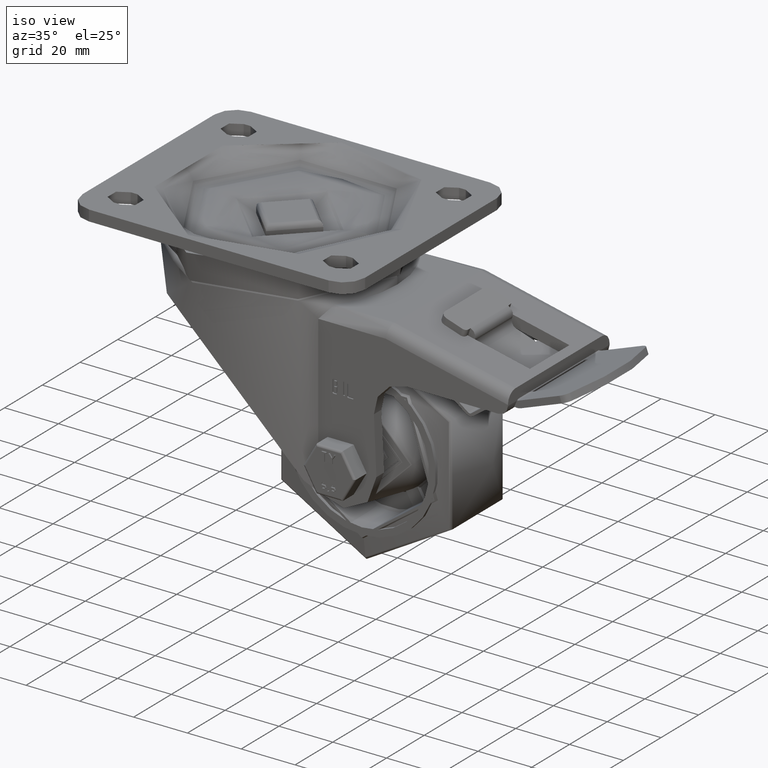
[diagram: clean part render]
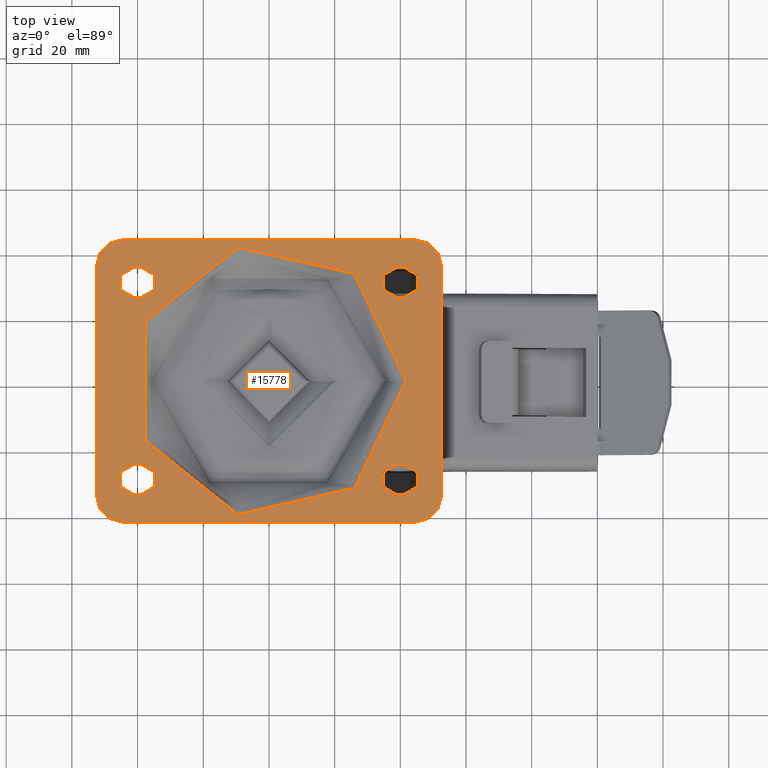
[diagram: tour spotlight — one face highlighted and labeled with its STEP entity id]
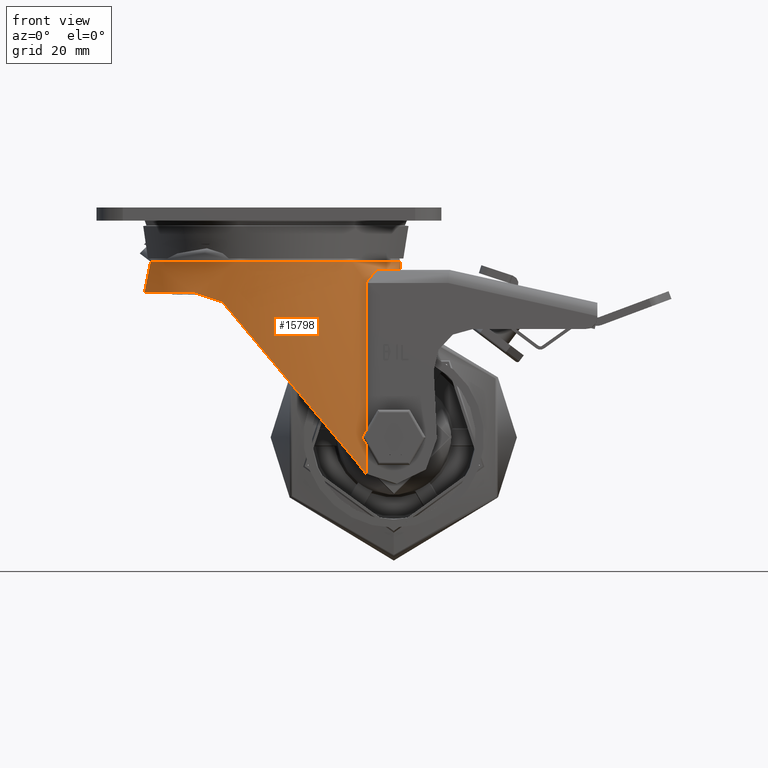
[diagram: tour spotlight — one face highlighted and labeled with its STEP entity id]
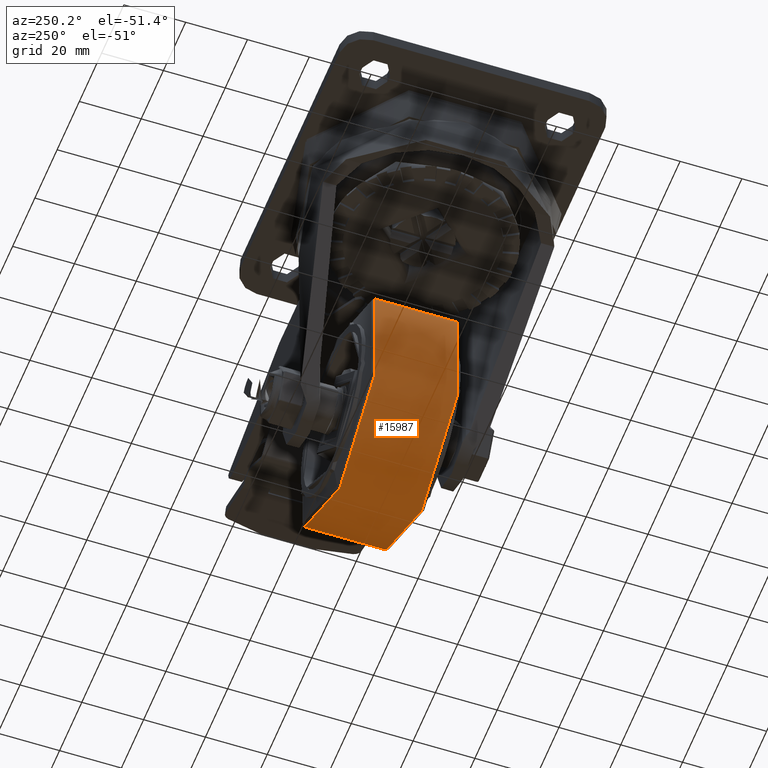
[diagram: tour spotlight — one face highlighted and labeled with its STEP entity id]
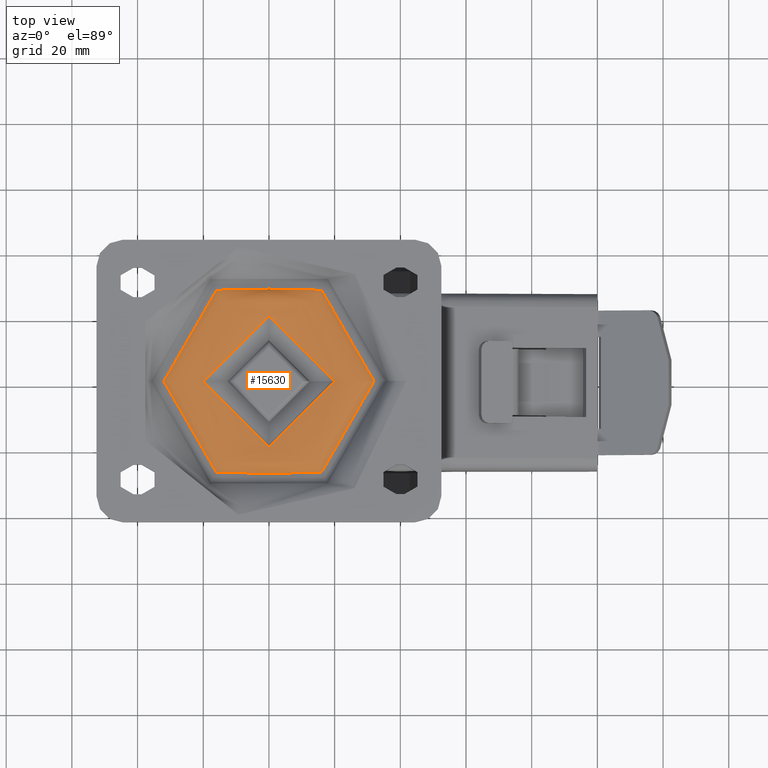
[diagram: tour spotlight — one face highlighted and labeled with its STEP entity id]
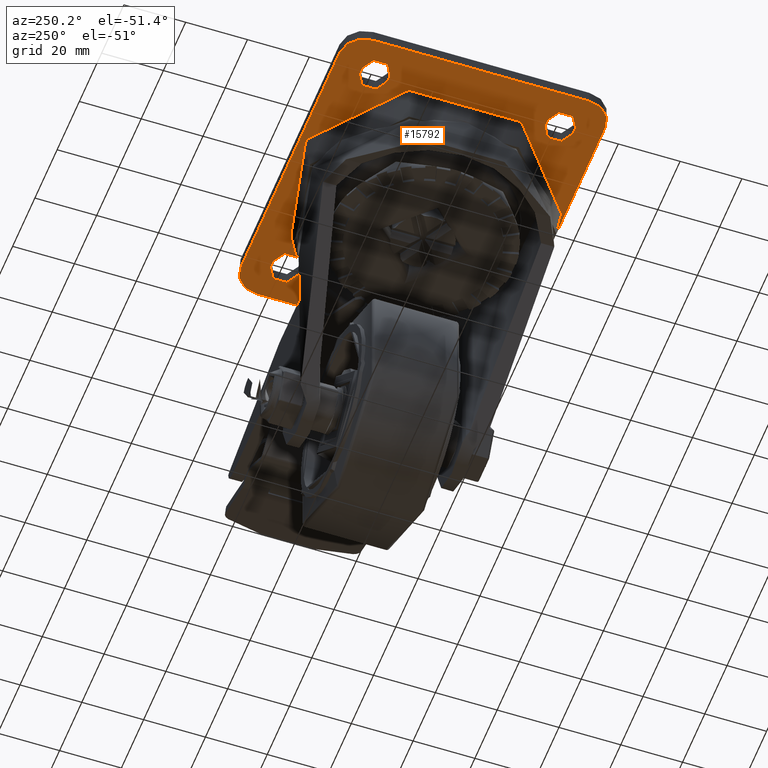
[diagram: tour spotlight — one face highlighted and labeled with its STEP entity id]
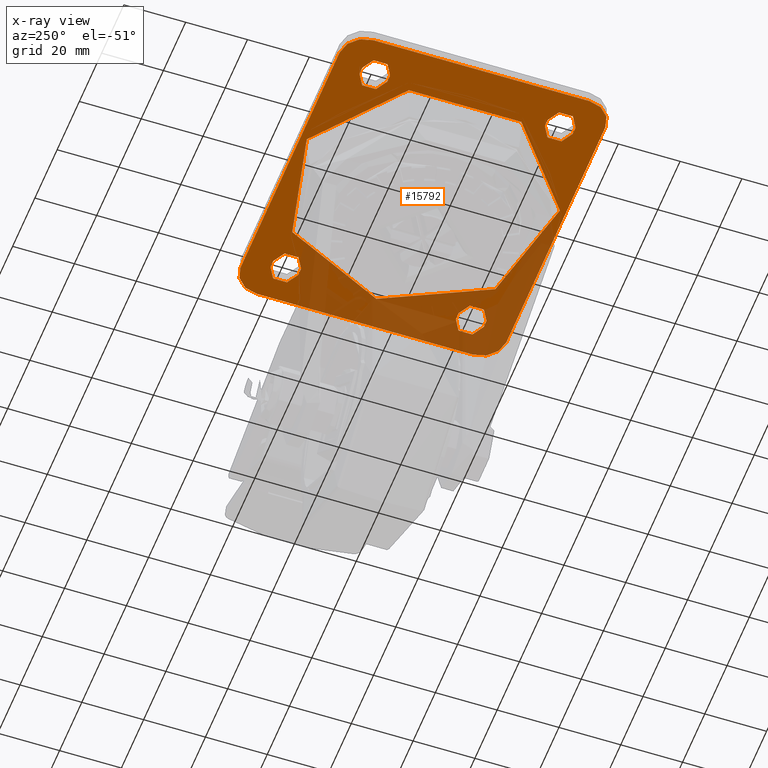
[diagram: x-ray of the same camera — body ghosted, this tour face saturated]
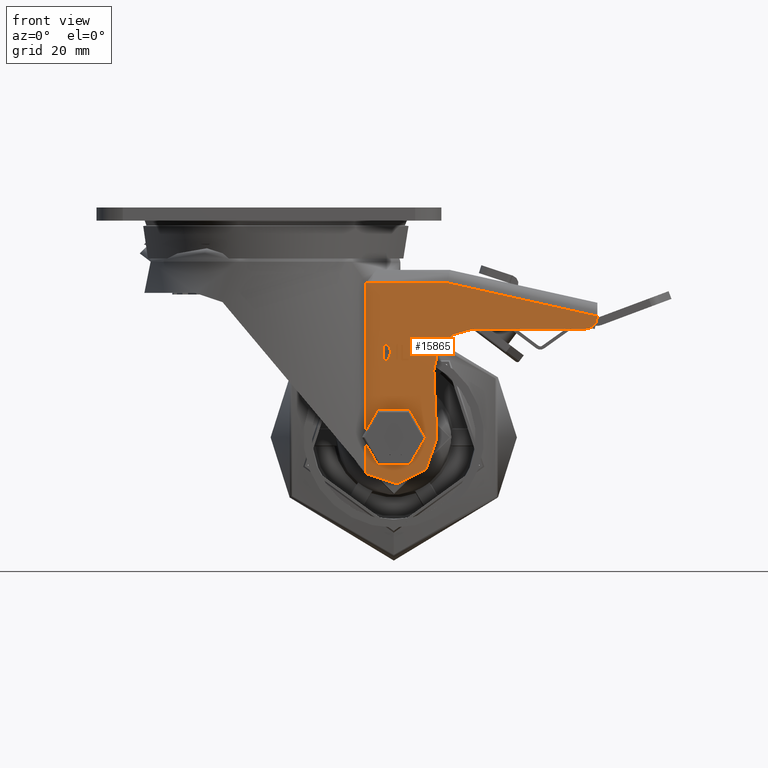
[diagram: tour spotlight — one face highlighted and labeled with its STEP entity id]
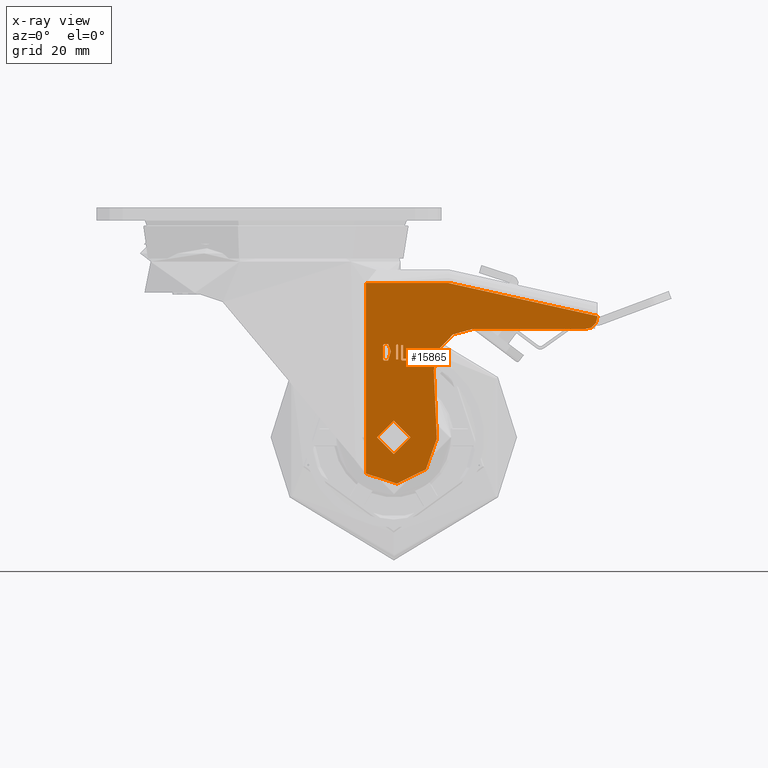
[diagram: x-ray of the same camera — body ghosted, this tour face saturated]
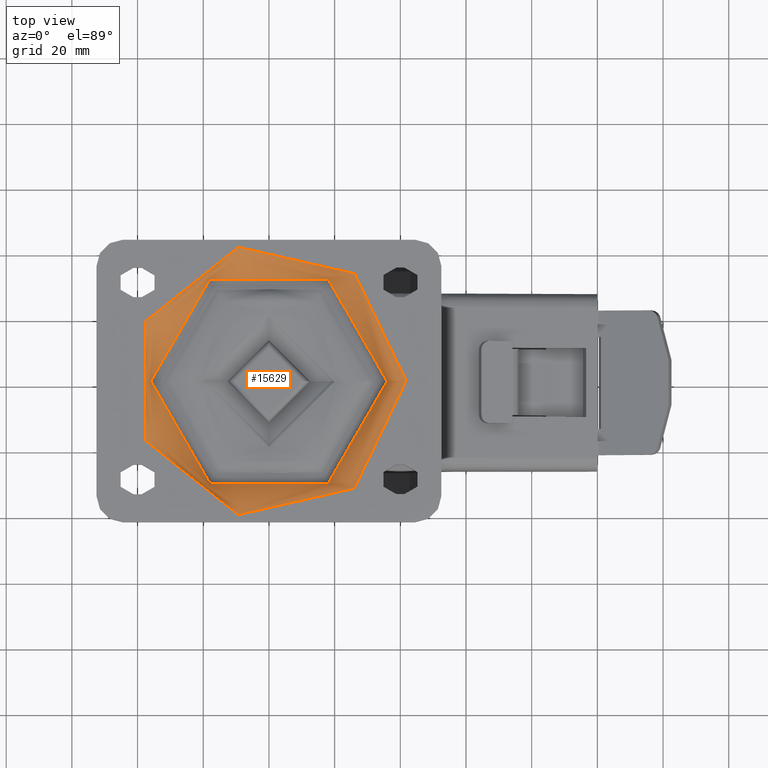
[diagram: tour spotlight — one face highlighted and labeled with its STEP entity id]
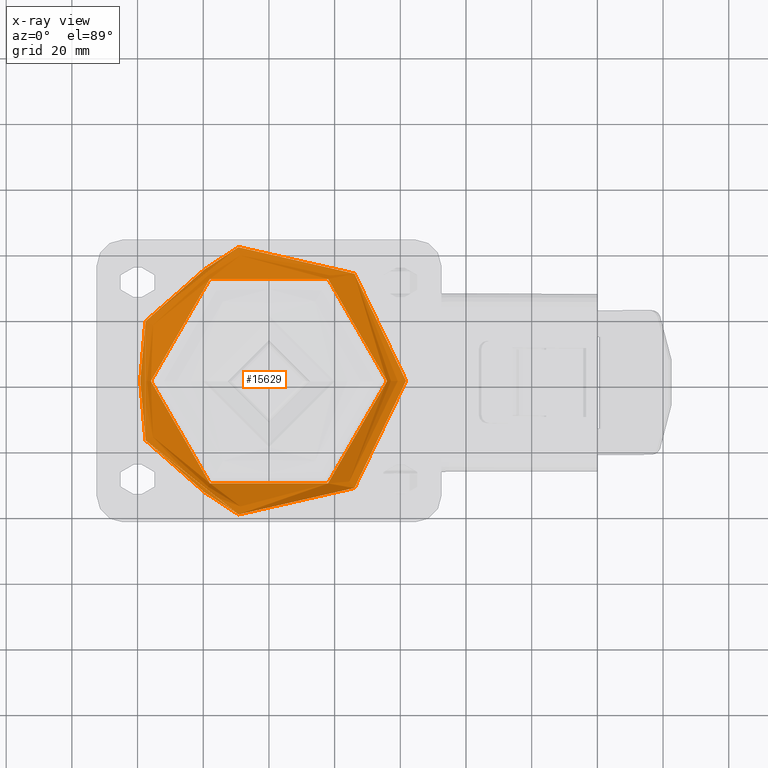
[diagram: x-ray of the same camera — body ghosted, this tour face saturated]
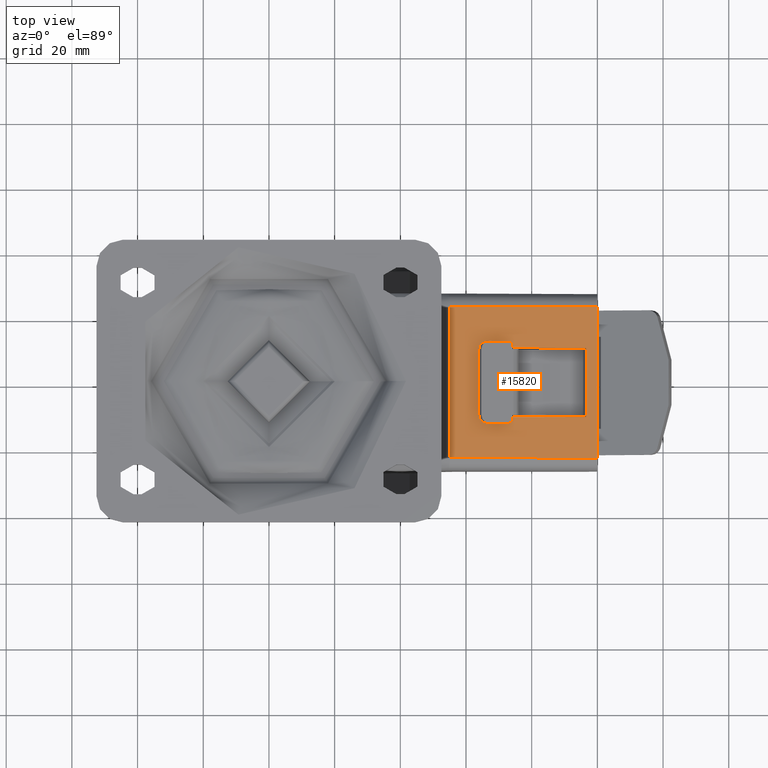
[diagram: tour spotlight — one face highlighted and labeled with its STEP entity id]
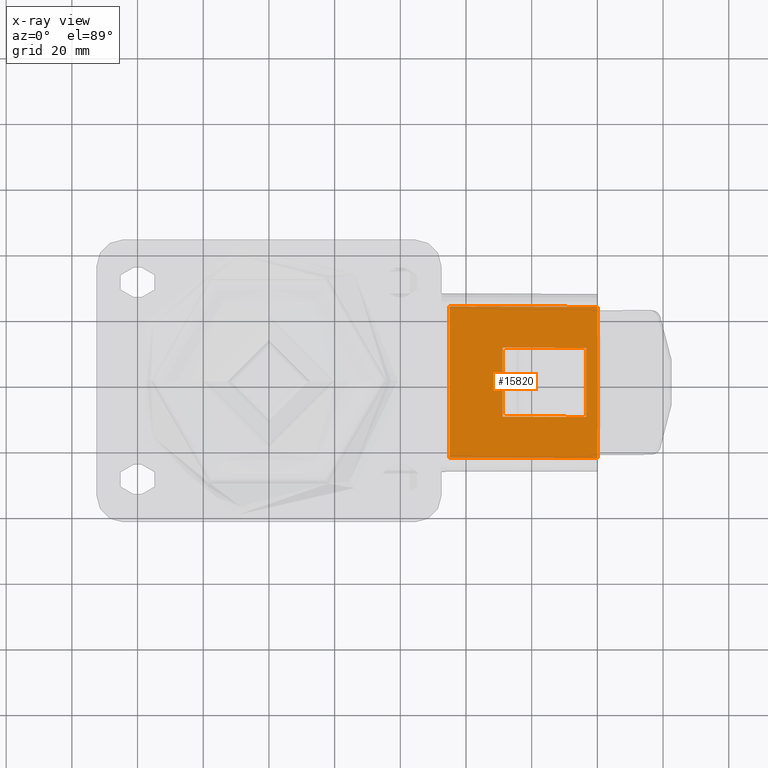
[diagram: x-ray of the same camera — body ghosted, this tour face saturated]
A machine part: a face-by-face anatomy tour. The part has 1160 B-rep faces; the first image is the clean iso view, then the 8 largest visible faces are spotlighted one at a time (largest first), each with its STEP entity span.

Face 1 — top view, entity #15778. In plain terms, the highlighted planar face has unit normal (0, 0, 1).
Definition (entity closure, byte-faithful):
#959=FACE_BOUND('',#2678,.T.);
#960=FACE_BOUND('',#2679,.T.);
#961=FACE_BOUND('',#2680,.T.);
#962=FACE_BOUND('',#2681,.T.);
#963=FACE_BOUND('',#2682,.T.);
#1138=PLANE('',#17172);
#1708=FACE_OUTER_BOUND('',#2677,.T.);
#2677=EDGE_LOOP('',(#11390,#11391,#11392,#11393,#11394,#11395,#11396,#11397));
#2678=EDGE_LOOP('',(#11398));
#2679=EDGE_LOOP('',(#11399,#11400,#11401,#11402));
#2680=EDGE_LOOP('',(#11403,#11404,#11405,#11406));
#2681=EDGE_LOOP('',(#11407,#11408,#11409,#11410));
#2682=EDGE_LOOP('',(#11411,#11412,#11413,#11414));
#3838=LINE('',#24426,#4930);
#3840=LINE('',#24429,#4932);
#3841=LINE('',#24430,#4933);
#3842=LINE('',#24431,#4934);
#3843=LINE('',#24432,#4935);
#3844=LINE('',#24433,#4936);
#3845=LINE('',#24434,#4937);
#3846=LINE('',#24435,#4938);
#3847=LINE('',#24436,#4939);
#3848=LINE('',#24437,#4940);
#3849=LINE('',#24438,#4941);
#3850=LINE('',#24439,#4942);
#4930=VECTOR('',#19645,1000.);
#4932=VECTOR('',#19649,1000.);
#4933=VECTOR('',#19650,1000.);
#4934=VECTOR('',#19651,1000.);
#4935=VECTOR('',#19652,1000.);
#4936=VECTOR('',#19653,1000.);
#4937=VECTOR('',#19654,1000.);
#4938=VECTOR('',#19655,1000.);
#4939=VECTOR('',#19656,1000.);
#4940=VECTOR('',#19657,1000.);
#4941=VECTOR('',#19658,1000.);
#4942=VECTOR('',#19659,1000.);
#5743=CIRCLE('',#16848,4.5);
#5744=CIRCLE('',#16850,4.5);
#5747=CIRCLE('',#16854,4.5);
#5748=CIRCLE('',#16856,4.5);
#5751=CIRCLE('',#16860,4.5);
#5752=CIRCLE('',#16862,4.5);
#5755=CIRCLE('',#16866,4.5);
#5756=CIRCLE('',#16868,4.5);
#5758=CIRCLE('',#16871,41.75);
#5771=CIRCLE('',#16891,8.);
#5773=CIRCLE('',#16894,8.);
#5775=CIRCLE('',#16897,8.);
#5777=CIRCLE('',#16900,8.);
#6624=VERTEX_POINT('',#23508);
#6625=VERTEX_POINT('',#23510);
#6626=VERTEX_POINT('',#23514);
#6627=VERTEX_POINT('',#23515);
#6632=VERTEX_POINT('',#23526);
#6633=VERTEX_POINT('',#23528);
#6634=VERTEX_POINT('',#23532);
#6635=VERTEX_POINT('',#23533);
#6640=VERTEX_POINT('',#23544);
#6641=VERTEX_POINT('',#23546);
#6642=VERTEX_POINT('',#23550);
#6643=VERTEX_POINT('',#23551);
#6648=VERTEX_POINT('',#23562);
#6649=VERTEX_POINT('',#23564);
#6650=VERTEX_POINT('',#23568);
#6651=VERTEX_POINT('',#23569);
#6654=VERTEX_POINT('',#23577);
#6663=VERTEX_POINT('',#23609);
#6664=VERTEX_POINT('',#23610);
#6667=VERTEX_POINT('',#23618);
#6668=VERTEX_POINT('',#23619);
#6671=VERTEX_POINT('',#23627);
#6672=VERTEX_POINT('',#23628);
#6675=VERTEX_POINT('',#23636);
#6676=VERTEX_POINT('',#23637);
#8123=EDGE_CURVE('',#6625,#6624,#5743,.T.);
#8125=EDGE_CURVE('',#6626,#6627,#5744,.T.);
#8131=EDGE_CURVE('',#6633,#6632,#5747,.T.);
#8133=EDGE_CURVE('',#6634,#6635,#5748,.T.);
#8139=EDGE_CURVE('',#6641,#6640,#5751,.T.);
#8141=EDGE_CURVE('',#6642,#6643,#5752,.T.);
#8147=EDGE_CURVE('',#6649,#6648,#5755,.T.);
#8149=EDGE_CURVE('',#6650,#6651,#5756,.T.);
#8153=EDGE_CURVE('',#6654,#6654,#5758,.T.);
#8169=EDGE_CURVE('',#6663,#6664,#5771,.T.);
#8173=EDGE_CURVE('',#6667,#6668,#5773,.T.);
#8177=EDGE_CURVE('',#6671,#6672,#5775,.T.);
#8181=EDGE_CURVE('',#6675,#6676,#5777,.T.);
#8573=EDGE_CURVE('',#6676,#6663,#3838,.T.);
#8575=EDGE_CURVE('',#6672,#6675,#3840,.T.);
#8576=EDGE_CURVE('',#6668,#6671,#3841,.T.);
#8577=EDGE_CURVE('',#6664,#6667,#3842,.T.);
#8578=EDGE_CURVE('',#6624,#6626,#3843,.T.);
#8579=EDGE_CURVE('',#6627,#6625,#3844,.T.);
#8580=EDGE_CURVE('',#6632,#6634,#3845,.T.);
#8581=EDGE_CURVE('',#6635,#6633,#3846,.T.);
#8582=EDGE_CURVE('',#6640,#6642,#3847,.T.);
#8583=EDGE_CURVE('',#6643,#6641,#3848,.T.);
#8584=EDGE_CURVE('',#6648,#6650,#3849,.T.);
#8585=EDGE_CURVE('',#6651,#6649,#3850,.T.);
#11390=ORIENTED_EDGE('',*,*,#8181,.F.);
#11391=ORIENTED_EDGE('',*,*,#8575,.F.);
#11392=ORIENTED_EDGE('',*,*,#8177,.F.);
#11393=ORIENTED_EDGE('',*,*,#8576,.F.);
#11394=ORIENTED_EDGE('',*,*,#8173,.F.);
#11395=ORIENTED_EDGE('',*,*,#8577,.F.);
#11396=ORIENTED_EDGE('',*,*,#8169,.F.);
#11397=ORIENTED_EDGE('',*,*,#8573,.F.);
#11398=ORIENTED_EDGE('',*,*,#8153,.F.);
#11399=ORIENTED_EDGE('',*,*,#8578,.T.);
#11400=ORIENTED_EDGE('',*,*,#8125,.T.);
#11401=ORIENTED_EDGE('',*,*,#8579,.T.);
#11402=ORIENTED_EDGE('',*,*,#8123,.T.);
#11403=ORIENTED_EDGE('',*,*,#8580,.T.);
#11404=ORIENTED_EDGE('',*,*,#8133,.T.);
#11405=ORIENTED_EDGE('',*,*,#8581,.T.);
#11406=ORIENTED_EDGE('',*,*,#8131,.T.);
#11407=ORIENTED_EDGE('',*,*,#8582,.T.);
#11408=ORIENTED_EDGE('',*,*,#8141,.T.);
#11409=ORIENTED_EDGE('',*,*,#8583,.T.);
#11410=ORIENTED_EDGE('',*,*,#8139,.T.);
#11411=ORIENTED_EDGE('',*,*,#8584,.T.);
#11412=ORIENTED_EDGE('',*,*,#8149,.T.);
#11413=ORIENTED_EDGE('',*,*,#8585,.T.);
#11414=ORIENTED_EDGE('',*,*,#8147,.T.);
#15778=ADVANCED_FACE('',(#1708,#959,#960,#961,#962,#963),#1138,.T.);
#16848=AXIS2_PLACEMENT_3D('',#23511,#18715,#18716);
#16850=AXIS2_PLACEMENT_3D('',#23516,#18720,#18721);
#16854=AXIS2_PLACEMENT_3D('',#23529,#18731,#18732);
#16856=AXIS2_PLACEMENT_3D('',#23534,#18736,#18737);
#16860=AXIS2_PLACEMENT_3D('',#23547,#18747,#18748);
#16862=AXIS2_PLACEMENT_3D('',#23552,#18752,#18753);
#16866=AXIS2_PLACEMENT_3D('',#23565,#18763,#18764);
#16868=AXIS2_PLACEMENT_3D('',#23570,#18768,#18769);
#16871=AXIS2_PLACEMENT_3D('',#23578,#18776,#18777);
#16891=AXIS2_PLACEMENT_3D('',#23611,#18819,#18820);
#16894=AXIS2_PLACEMENT_3D('',#23620,#18827,#18828);
#16897=AXIS2_PLACEMENT_3D('',#23629,#18835,#18836);
#16900=AXIS2_PLACEMENT_3D('',#23638,#18843,#18844);
#17172=AXIS2_PLACEMENT_3D('',#24428,#19647,#19648);
#18715=DIRECTION('center_axis',(0.,0.,-1.));
#18716=DIRECTION('ref_axis',(-1.,-5.665498452323E-16,0.));
#18720=DIRECTION('center_axis',(0.,0.,-1.));
#18721=DIRECTION('ref_axis',(-1.,-5.665498452323E-16,0.));
#18731=DIRECTION('center_axis',(0.,0.,-1.));
#18732=DIRECTION('ref_axis',(-1.,0.,0.));
#18736=DIRECTION('center_axis',(0.,0.,-1.));
#18737=DIRECTION('ref_axis',(-1.,0.,0.));
#18747=DIRECTION('center_axis',(0.,0.,-1.));
#18748=DIRECTION('ref_axis',(1.,5.665498452323E-16,0.));
#18752=DIRECTION('center_axis',(0.,0.,-1.));
#18753=DIRECTION('ref_axis',(1.,5.665498452323E-16,0.));
#18763=DIRECTION('center_axis',(0.,0.,-1.));
#18764=DIRECTION('ref_axis',(1.,0.,0.));
#18768=DIRECTION('center_axis',(0.,0.,-1.));
#18769=DIRECTION('ref_axis',(1.,0.,0.));
#18776=DIRECTION('center_axis',(0.,0.,1.));
#18777=DIRECTION('ref_axis',(1.,1.22464679914735E-16,0.));
#18819=DIRECTION('center_axis',(0.,0.,-1.));
#18820=DIRECTION('ref_axis',(-0.707106781186548,0.707106781186547,0.));
#18827=DIRECTION('center_axis',(0.,0.,-1.));
#18828=DIRECTION('ref_axis',(0.707106781186548,0.707106781186547,0.));
#18835=DIRECTION('center_axis',(0.,0.,-1.));
#18836=DIRECTION('ref_axis',(0.707106781186548,-0.707106781186547,0.));
#18843=DIRECTION('center_axis',(0.,0.,-1.));
#18844=DIRECTION('ref_axis',(-0.707106781186548,-0.707106781186547,0.));
#19645=DIRECTION('',(0.,1.,0.));
#19647=DIRECTION('center_axis',(0.,0.,1.));
#19648=DIRECTION('ref_axis',(1.,0.,0.));
#19649=DIRECTION('',(-1.,0.,0.));
#19650=DIRECTION('',(0.,-1.,0.));
#19651=DIRECTION('',(1.,0.,0.));
#19652=DIRECTION('',(-1.,0.,0.));
#19653=DIRECTION('',(1.,0.,0.));
#19654=DIRECTION('',(-1.,0.,0.));
#19655=DIRECTION('',(1.,0.,0.));
#19656=DIRECTION('',(1.,0.,0.));
#19657=DIRECTION('',(-1.,0.,0.));
#19658=DIRECTION('',(1.,0.,0.));
#19659=DIRECTION('',(-1.,0.,0.));
#23508=CARTESIAN_POINT('',(41.25,-34.4999999999999,0.));
#23510=CARTESIAN_POINT('',(41.25,-25.4999999999999,0.));
#23511=CARTESIAN_POINT('Origin',(41.25,-29.9999999999999,0.));
#23514=CARTESIAN_POINT('',(38.75,-34.4999999999999,0.));
#23515=CARTESIAN_POINT('',(38.75,-25.4999999999999,0.));
#23516=CARTESIAN_POINT('Origin',(38.75,-29.9999999999999,0.));
#23526=CARTESIAN_POINT('',(41.25,25.5,0.));
#23528=CARTESIAN_POINT('',(41.25,34.5,0.));
#23529=CARTESIAN_POINT('Origin',(41.25,30.,0.));
#23532=CARTESIAN_POINT('',(38.75,25.5,0.));
#23533=CARTESIAN_POINT('',(38.75,34.5,0.));
#23534=CARTESIAN_POINT('Origin',(38.75,30.,0.));
#23544=CARTESIAN_POINT('',(-41.25,-25.5,0.));
#23546=CARTESIAN_POINT('',(-41.25,-34.5,0.));
#23547=CARTESIAN_POINT('Origin',(-41.25,-30.,0.));
#23550=CARTESIAN_POINT('',(-38.75,-25.5,0.));
#23551=CARTESIAN_POINT('',(-38.75,-34.5,0.));
#23552=CARTESIAN_POINT('Origin',(-38.75,-30.,0.));
#23562=CARTESIAN_POINT('',(-41.25,34.5,0.));
#23564=CARTESIAN_POINT('',(-41.25,25.5,0.));
#23565=CARTESIAN_POINT('Origin',(-41.25,30.,0.));
#23568=CARTESIAN_POINT('',(-38.75,34.5,0.));
#23569=CARTESIAN_POINT('',(-38.75,25.5,0.));
#23570=CARTESIAN_POINT('Origin',(-38.75,30.,0.));
#23577=CARTESIAN_POINT('',(41.75,5.1129003864402E-15,0.));
#23578=CARTESIAN_POINT('Origin',(0.,0.,0.));
#23609=CARTESIAN_POINT('',(-52.5,35.,0.));
#23610=CARTESIAN_POINT('',(-44.5,43.,0.));
#23611=CARTESIAN_POINT('Origin',(-44.5,35.,0.));
#23618=CARTESIAN_POINT('',(44.5,43.,0.));
#23619=CARTESIAN_POINT('',(52.5,35.,0.));
#23620=CARTESIAN_POINT('Origin',(44.5,35.,0.));
#23627=CARTESIAN_POINT('',(52.5,-35.,0.));
#23628=CARTESIAN_POINT('',(44.5,-43.,0.));
#23629=CARTESIAN_POINT('Origin',(44.5,-35.,0.));
#23636=CARTESIAN_POINT('',(-44.5,-43.,0.));
#23637=CARTESIAN_POINT('',(-52.5,-35.,0.));
#23638=CARTESIAN_POINT('Origin',(-44.5,-35.,0.));
#24426=CARTESIAN_POINT('',(-52.5,-43.,0.));
#24428=CARTESIAN_POINT('Origin',(0.,0.,0.));
#24429=CARTESIAN_POINT('',(52.5,-43.,0.));
#24430=CARTESIAN_POINT('',(52.5,43.,0.));
#24431=CARTESIAN_POINT('',(-52.5,43.,0.));
#24432=CARTESIAN_POINT('',(41.25,-34.4999999999999,0.));
#24433=CARTESIAN_POINT('',(41.25,-25.4999999999999,0.));
#24434=CARTESIAN_POINT('',(41.25,25.5,0.));
#24435=CARTESIAN_POINT('',(41.25,34.5,0.));
#24436=CARTESIAN_POINT('',(-41.25,-25.5,0.));
#24437=CARTESIAN_POINT('',(-41.25,-34.5,0.));
#24438=CARTESIAN_POINT('',(-41.25,34.5,0.));
#24439=CARTESIAN_POINT('',(-41.25,25.5,0.));

Face 2 — front view, entity #15798. In plain terms, the highlighted cylindrical surface (bore or boss wall) has radius 40 mm, axis along (-0, 0, -1).
Definition (entity closure, byte-faithful):
#476=B_SPLINE_CURVE_WITH_KNOTS('',3,(#24530,#24531,#24532,#24533,#24534,
#24535,#24536,#24537,#24538,#24539,#24540,#24541),.UNSPECIFIED.,.F.,.F.,
(4,2,2,2,2,4),(-0.689052735913539,-0.506687006283466,-0.324321276653392,
-0.162160638326696,-0.0810803191633481,0.),.UNSPECIFIED.);
#477=B_SPLINE_CURVE_WITH_KNOTS('',3,(#24545,#24546,#24547,#24548,#24549,
#24550,#24551,#24552),.UNSPECIFIED.,.F.,.F.,(4,2,2,4),(14.9841141940737,
15.1410811475317,15.3469592319773,15.5590092337817),.UNSPECIFIED.);
#478=B_SPLINE_CURVE_WITH_KNOTS('',3,(#24554,#24555,#24556,#24557,#24558,
#24559,#24560,#24561,#24562,#24563,#24564,#24565),.UNSPECIFIED.,.F.,.F.,
(4,2,2,2,2,4),(-24.2309254662583,-24.0422374303291,-22.0964210211702,-20.1506046120113,
-18.2047882028524,-17.9142040045154),.UNSPECIFIED.);
#479=B_SPLINE_CURVE_WITH_KNOTS('',3,(#24567,#24568,#24569,#24570,#24571,
#24572,#24573,#24574,#24575,#24576),.UNSPECIFIED.,.F.,.F.,(4,2,2,2,4),(-3.69876145992778,
-3.6165895762072,-3.32099895437732,-3.02540833254744,-2.72981771071756),
 .UNSPECIFIED.);
#480=B_SPLINE_CURVE_WITH_KNOTS('',3,(#24580,#24581,#24582,#24583,#24584,
#24585,#24586,#24587,#24588,#24589),.UNSPECIFIED.,.F.,.F.,(4,2,2,2,4),(-7.18585120745996,
-6.89026058563008,-6.5946699638002,-6.29907934197032,-6.21690745824974),
 .UNSPECIFIED.);
#481=B_SPLINE_CURVE_WITH_KNOTS('',3,(#24591,#24592,#24593,#24594,#24595,
#24596,#24597,#24598,#24599,#24600,#24601,#24602),.UNSPECIFIED.,.F.,.F.,
(4,2,2,2,2,4),(-8.07384983497254,-7.78326563663559,-5.83744922747669,-3.89163281831779,
-1.9458164091589,-1.75712837322968),.UNSPECIFIED.);
#482=B_SPLINE_CURVE_WITH_KNOTS('',3,(#24604,#24605,#24606,#24607,#24608,
#24609,#24610,#24611),.UNSPECIFIED.,.F.,.F.,(4,2,2,4),(-11.9457802194474,
-11.6687259288484,-11.36711729153,-11.3565517380772),.UNSPECIFIED.);
#483=B_SPLINE_CURVE_WITH_KNOTS('',3,(#24614,#24615,#24616,#24617,#24618,
#24619,#24620,#24621,#24622,#24623,#24624,#24625),.UNSPECIFIED.,.F.,.F.,
(4,2,2,2,2,4),(0.,0.0810803191633481,0.162160638326696,0.324321276653392,
0.506687006283466,0.689052735913539),.UNSPECIFIED.);
#1728=FACE_OUTER_BOUND('',#2708,.T.);
#2708=EDGE_LOOP('',(#11509,#11510,#11511,#11512,#11513,#11514,#11515,#11516,
#11517,#11518,#11519,#11520,#11521,#11522,#11523,#11524));
#3869=LINE('',#24525,#4961);
#3870=LINE('',#24543,#4962);
#3871=LINE('',#24613,#4963);
#4961=VECTOR('',#19742,40.);
#4962=VECTOR('',#19747,1000.);
#4963=VECTOR('',#19750,1000.);
#5909=CIRCLE('',#17204,40.);
#5910=CIRCLE('',#17205,40.);
#5911=CIRCLE('',#17206,40.);
#5912=CIRCLE('',#17207,40.);
#6951=VERTEX_POINT('',#24521);
#6952=VERTEX_POINT('',#24522);
#6953=VERTEX_POINT('',#24524);
#6954=VERTEX_POINT('',#24527);
#6955=VERTEX_POINT('',#24529);
#6956=VERTEX_POINT('',#24542);
#6957=VERTEX_POINT('',#24544);
#6958=VERTEX_POINT('',#24553);
#6959=VERTEX_POINT('',#24566);
#6960=VERTEX_POINT('',#24577);
#6961=VERTEX_POINT('',#24579);
#6962=VERTEX_POINT('',#24590);
#6963=VERTEX_POINT('',#24603);
#6964=VERTEX_POINT('',#24612);
#8616=EDGE_CURVE('',#6951,#6952,#5909,.T.);
#8617=EDGE_CURVE('',#6952,#6953,#3869,.T.);
#8618=EDGE_CURVE('',#6953,#6953,#5910,.T.);
#8619=EDGE_CURVE('',#6952,#6954,#5911,.T.);
#8620=EDGE_CURVE('',#6955,#6954,#476,.F.);
#8621=EDGE_CURVE('',#6955,#6956,#3870,.T.);
#8622=EDGE_CURVE('',#6956,#6957,#477,.T.);
#8623=EDGE_CURVE('',#6957,#6958,#478,.T.);
#8624=EDGE_CURVE('',#6958,#6959,#479,.T.);
#8625=EDGE_CURVE('',#6959,#6960,#5912,.T.);
#8626=EDGE_CURVE('',#6960,#6961,#480,.T.);
#8627=EDGE_CURVE('',#6961,#6962,#481,.T.);
#8628=EDGE_CURVE('',#6962,#6963,#482,.T.);
#8629=EDGE_CURVE('',#6963,#6964,#3871,.T.);
#8630=EDGE_CURVE('',#6951,#6964,#483,.F.);
#11509=ORIENTED_EDGE('',*,*,#8616,.T.);
#11510=ORIENTED_EDGE('',*,*,#8617,.T.);
#11511=ORIENTED_EDGE('',*,*,#8618,.F.);
#11512=ORIENTED_EDGE('',*,*,#8617,.F.);
#11513=ORIENTED_EDGE('',*,*,#8619,.T.);
#11514=ORIENTED_EDGE('',*,*,#8620,.F.);
#11515=ORIENTED_EDGE('',*,*,#8621,.T.);
#11516=ORIENTED_EDGE('',*,*,#8622,.T.);
#11517=ORIENTED_EDGE('',*,*,#8623,.T.);
#11518=ORIENTED_EDGE('',*,*,#8624,.T.);
#11519=ORIENTED_EDGE('',*,*,#8625,.T.);
#11520=ORIENTED_EDGE('',*,*,#8626,.T.);
#11521=ORIENTED_EDGE('',*,*,#8627,.T.);
#11522=ORIENTED_EDGE('',*,*,#8628,.T.);
#11523=ORIENTED_EDGE('',*,*,#8629,.T.);
#11524=ORIENTED_EDGE('',*,*,#8630,.F.);
#15389=CYLINDRICAL_SURFACE('',#17203,40.);
#15798=ADVANCED_FACE('',(#1728),#15389,.T.);
#17203=AXIS2_PLACEMENT_3D('',#24520,#19738,#19739);
#17204=AXIS2_PLACEMENT_3D('',#24523,#19740,#19741);
#17205=AXIS2_PLACEMENT_3D('',#24526,#19743,#19744);
#17206=AXIS2_PLACEMENT_3D('',#24528,#19745,#19746);
#17207=AXIS2_PLACEMENT_3D('',#24578,#19748,#19749);
#19738=DIRECTION('center_axis',(-2.89120579329468E-16,0.,-1.));
#19739=DIRECTION('ref_axis',(-1.,0.,2.89120579329468E-16));
#19740=DIRECTION('center_axis',(1.38777878078145E-15,0.,1.));
#19741=DIRECTION('ref_axis',(-1.,0.,1.38777878078145E-15));
#19742=DIRECTION('',(2.89120579329468E-16,0.,1.));
#19743=DIRECTION('center_axis',(2.89120579329468E-16,0.,1.));
#19744=DIRECTION('ref_axis',(1.,1.22464679914735E-16,-2.89120579329468E-16));
#19745=DIRECTION('center_axis',(1.38777878078145E-15,0.,1.));
#19746=DIRECTION('ref_axis',(-1.,0.,1.38777878078145E-15));
#19747=DIRECTION('',(-2.89120579329468E-16,0.,-1.));
#19748=DIRECTION('center_axis',(-3.98096831679233E-16,0.,1.));
#19749=DIRECTION('ref_axis',(-1.,0.,-3.98096831679233E-16));
#19750=DIRECTION('',(2.89120579329468E-16,0.,1.));
#24520=CARTESIAN_POINT('Origin',(-8.67361737988405E-16,0.,-11.5));
#24521=CARTESIAN_POINT('',(32.7261363439071,-23.,-19.));
#24522=CARTESIAN_POINT('',(40.,-4.89858719658941E-15,-19.0000000000001));
#24523=CARTESIAN_POINT('Origin',(-3.03576608295941E-15,0.,-19.));
#24524=CARTESIAN_POINT('',(40.,4.89858719658941E-15,-16.5));
#24525=CARTESIAN_POINT('',(40.,-4.89858719658941E-15,-11.5));
#24526=CARTESIAN_POINT('Origin',(-2.31296463463574E-15,0.,-16.5));
#24527=CARTESIAN_POINT('',(32.7261363439071,23.,-19.));
#24528=CARTESIAN_POINT('Origin',(-3.03576608295941E-15,0.,-19.));
#24529=CARTESIAN_POINT('',(29.5127091267474,27.,-23.));
#24530=CARTESIAN_POINT('Ctrl Pts',(32.7261363439072,23.,-19.));
#24531=CARTESIAN_POINT('Ctrl Pts',(32.3766020287828,23.4973438110275,-19.));
#24532=CARTESIAN_POINT('Ctrl Pts',(31.9873455369021,24.0248823775956,-19.097377807974));
#24533=CARTESIAN_POINT('Ctrl Pts',(31.2265327393435,25.005777349518,-19.4989000458045));
#24534=CARTESIAN_POINT('Ctrl Pts',(30.8552556241967,25.459509525405,-19.8026552759126));
#24535=CARTESIAN_POINT('Ctrl Pts',(30.2658818532404,26.1564707408382,-20.4996164913459));
#24536=CARTESIAN_POINT('Ctrl Pts',(29.9972998202262,26.4620906844482,-20.926780767368));
#24537=CARTESIAN_POINT('Ctrl Pts',(29.7139638678689,26.778730577431,-21.6612424204511));
#24538=CARTESIAN_POINT('Ctrl Pts',(29.6388936874271,26.8615259392418,-21.921561381094));
#24539=CARTESIAN_POINT('Ctrl Pts',(29.538226788649,26.9721848018912,-22.4557938567175));
#24540=CARTESIAN_POINT('Ctrl Pts',(29.5127091267474,27.,-22.7297322694555));
#24541=CARTESIAN_POINT('Ctrl Pts',(29.5127091267474,27.,-23.));
#24542=CARTESIAN_POINT('',(29.5127091267474,27.,-81.0201934132147));
#24543=CARTESIAN_POINT('',(29.5127091267474,27.,-51.));
#24544=CARTESIAN_POINT('',(26.3193158417228,30.121314938489,-77.));
#24545=CARTESIAN_POINT('Ctrl Pts',(29.5127091267474,27.,-81.0201934132147));
#24546=CARTESIAN_POINT('Ctrl Pts',(29.1938057248419,27.348581605184,-80.7500762786619));
#24547=CARTESIAN_POINT('Ctrl Pts',(28.8609575813402,27.6994436989574,-80.4411310404219));
#24548=CARTESIAN_POINT('Ctrl Pts',(28.1115305840147,28.4624328318664,-79.6621436679604));
#24549=CARTESIAN_POINT('Ctrl Pts',(27.7019888820744,28.8588385601153,-79.1701584233785));
#24550=CARTESIAN_POINT('Ctrl Pts',(26.9873409242328,29.5284666912221,-78.1794080517965));
#24551=CARTESIAN_POINT('Ctrl Pts',(26.6349419709667,29.8455280480283,-77.614454854633));
#24552=CARTESIAN_POINT('Ctrl Pts',(26.3193158417228,30.121314938489,-77.));
#24553=CARTESIAN_POINT('',(-14.11431907495,37.4270757213344,-28.8418518916849));
#24554=CARTESIAN_POINT('Ctrl Pts',(26.3193158417228,30.121314938489,-77.));
#24555=CARTESIAN_POINT('Ctrl Pts',(26.0398003499082,30.3655491801463,-76.455844637128));
#24556=CARTESIAN_POINT('Ctrl Pts',(25.7558346133874,30.6068105805384,-75.9117033193775));
#24557=CARTESIAN_POINT('Ctrl Pts',(22.4934406278572,33.3004407191243,-69.7587170760353));
#24558=CARTESIAN_POINT('Ctrl Pts',(19.0427501530053,35.4231827322276,-64.177371192634));
#24559=CARTESIAN_POINT('Ctrl Pts',(11.3179653540266,38.591862724092,-53.475064144815));
#24560=CARTESIAN_POINT('Ctrl Pts',(7.0439400025365,39.6389308059603,-48.3534742406925));
#24561=CARTESIAN_POINT('Ctrl Pts',(-2.073382055758,40.2065045907969,-38.861593929942));
#24562=CARTESIAN_POINT('Ctrl Pts',(-6.91626879971147,39.7363194709017,-34.4914686745314));
#24563=CARTESIAN_POINT('Ctrl Pts',(-12.5996794972312,37.9716471220933,-30.0018295301259));
#24564=CARTESIAN_POINT('Ctrl Pts',(-13.3524655873006,37.7143822502524,-29.419175600729));
#24565=CARTESIAN_POINT('Ctrl Pts',(-14.11431907495,37.4270757213345,-28.8418518916848));
#24566=CARTESIAN_POINT('',(-22.5698338903178,33.0242728635085,-26.));
#24567=CARTESIAN_POINT('Ctrl Pts',(-14.11431907495,37.4270757213344,-28.8418518916849));
#24568=CARTESIAN_POINT('Ctrl Pts',(-14.330270567448,37.3456371314611,-28.6782063631893));
#24569=CARTESIAN_POINT('Ctrl Pts',(-14.5511475408914,37.2602037536498,-28.5207101751469));
#24570=CARTESIAN_POINT('Ctrl Pts',(-15.5859946874562,36.8488272645826,-27.8272386521635));
#24571=CARTESIAN_POINT('Ctrl Pts',(-16.451049279975,36.4735996558354,-27.3719579784097));
#24572=CARTESIAN_POINT('Ctrl Pts',(-18.2175406142755,35.6241733662516,-26.6596664871576));
#24573=CARTESIAN_POINT('Ctrl Pts',(-19.1206266302204,35.1489042523873,-26.4017324607325));
#24574=CARTESIAN_POINT('Ctrl Pts',(-20.8900729342309,34.1269495522625,-26.0720312357448));
#24575=CARTESIAN_POINT('Ctrl Pts',(-21.7563617777175,33.5802254663615,-26.));
#24576=CARTESIAN_POINT('Ctrl Pts',(-22.5698338903178,33.0242728635085,-26.));
#24577=CARTESIAN_POINT('',(-22.5698338903178,-33.0242728635085,-26.));
#24578=CARTESIAN_POINT('Origin',(-5.05961013826569E-15,0.,-26.));
#24579=CARTESIAN_POINT('',(-14.11431907495,-37.4270757213344,-28.8418518916849));
#24580=CARTESIAN_POINT('Ctrl Pts',(-22.5698338903178,-33.0242728635085,
-26.));
#24581=CARTESIAN_POINT('Ctrl Pts',(-21.7563617777175,-33.5802254663615,
-26.));
#24582=CARTESIAN_POINT('Ctrl Pts',(-20.8900729342309,-34.1269495522625,
-26.0720312357448));
#24583=CARTESIAN_POINT('Ctrl Pts',(-19.1206266302204,-35.1489042523873,
-26.4017324607325));
#24584=CARTESIAN_POINT('Ctrl Pts',(-18.2175406142755,-35.6241733662516,
-26.6596664871576));
#24585=CARTESIAN_POINT('Ctrl Pts',(-16.451049279975,-36.4735996558354,-27.3719579784097));
#24586=CARTESIAN_POINT('Ctrl Pts',(-15.5859946874562,-36.8488272645826,
-27.8272386521635));
#24587=CARTESIAN_POINT('Ctrl Pts',(-14.5511475408914,-37.2602037536498,
-28.5207101751469));
#24588=CARTESIAN_POINT('Ctrl Pts',(-14.330270567448,-37.3456371314611,-28.6782063631893));
#24589=CARTESIAN_POINT('Ctrl Pts',(-14.11431907495,-37.4270757213344,-28.8418518916849));
#24590=CARTESIAN_POINT('',(26.3193158417228,-30.121314938489,-77.));
#24591=CARTESIAN_POINT('Ctrl Pts',(-14.11431907495,-37.4270757213345,-28.8418518916848));
#24592=CARTESIAN_POINT('Ctrl Pts',(-13.3524655873006,-37.7143822502524,
-29.419175600729));
#24593=CARTESIAN_POINT('Ctrl Pts',(-12.5996794972312,-37.9716471220933,
-30.0018295301259));
#24594=CARTESIAN_POINT('Ctrl Pts',(-6.91626879971145,-39.7363194709017,
-34.4914686745314));
#24595=CARTESIAN_POINT('Ctrl Pts',(-2.07338205575798,-40.2065045907969,
-38.861593929942));
#24596=CARTESIAN_POINT('Ctrl Pts',(7.04394000253651,-39.6389308059603,-48.3534742406925));
#24597=CARTESIAN_POINT('Ctrl Pts',(11.3179653540267,-38.591862724092,-53.475064144815));
#24598=CARTESIAN_POINT('Ctrl Pts',(19.0427501530053,-35.4231827322276,-64.177371192634));
#24599=CARTESIAN_POINT('Ctrl Pts',(22.4934406278573,-33.3004407191243,-69.7587170760353));
#24600=CARTESIAN_POINT('Ctrl Pts',(25.7558346133874,-30.6068105805384,-75.9117033193775));
#24601=CARTESIAN_POINT('Ctrl Pts',(26.0398003499082,-30.3655491801463,-76.455844637128));
#24602=CARTESIAN_POINT('Ctrl Pts',(26.3193158417228,-30.121314938489,-77.));
#24603=CARTESIAN_POINT('',(29.5127091267474,-27.,-81.0201934132147));
#24604=CARTESIAN_POINT('Ctrl Pts',(26.3193158417228,-30.121314938489,-77.));
#24605=CARTESIAN_POINT('Ctrl Pts',(26.7238567855481,-29.7678363173468,-77.7875524989857));
#24606=CARTESIAN_POINT('Ctrl Pts',(27.1985790736186,-29.3383422110969,-78.5128611014591));
#24607=CARTESIAN_POINT('Ctrl Pts',(28.2648008953763,-28.3142155631979,-79.8580299010242));
#24608=CARTESIAN_POINT('Ctrl Pts',(28.8624783229518,-27.7076417464814,-80.4628205369732));
#24609=CARTESIAN_POINT('Ctrl Pts',(29.4714824911049,-27.0450115101013,-80.9851644398054));
#24610=CARTESIAN_POINT('Ctrl Pts',(29.4920955060222,-27.0225319923152,-81.002733291655));
#24611=CARTESIAN_POINT('Ctrl Pts',(29.5127091267474,-27.,-81.0201934132147));
#24612=CARTESIAN_POINT('',(29.5127091267474,-27.,-23.));
#24613=CARTESIAN_POINT('',(29.5127091267474,-27.,-51.));
#24614=CARTESIAN_POINT('Ctrl Pts',(29.5127091267474,-27.,-23.));
#24615=CARTESIAN_POINT('Ctrl Pts',(29.5127091267474,-27.,-22.7297322694555));
#24616=CARTESIAN_POINT('Ctrl Pts',(29.538226788649,-26.9721848018912,-22.4557938567175));
#24617=CARTESIAN_POINT('Ctrl Pts',(29.6388936874271,-26.8615259392418,-21.921561381094));
#24618=CARTESIAN_POINT('Ctrl Pts',(29.7139638678689,-26.778730577431,-21.6612424204511));
#24619=CARTESIAN_POINT('Ctrl Pts',(29.9972998202262,-26.4620906844482,-20.926780767368));
#24620=CARTESIAN_POINT('Ctrl Pts',(30.2658818532404,-26.1564707408382,-20.4996164913459));
#24621=CARTESIAN_POINT('Ctrl Pts',(30.8552556241967,-25.459509525405,-19.8026552759126));
#24622=CARTESIAN_POINT('Ctrl Pts',(31.2265327393435,-25.005777349518,-19.4989000458045));
#24623=CARTESIAN_POINT('Ctrl Pts',(31.9873455369021,-24.0248823775956,-19.097377807974));
#24624=CARTESIAN_POINT('Ctrl Pts',(32.3766020287828,-23.4973438110275,-19.));
#24625=CARTESIAN_POINT('Ctrl Pts',(32.7261363439072,-23.,-19.));

Face 3 — auxiliary view, entity #15987. In plain terms, the highlighted face is a freeform B-spline surface patch.
Definition (entity closure, byte-faithful):
#125=(
BOUNDED_SURFACE()
B_SPLINE_SURFACE(2,2,((#27341,#27342,#27343,#27344,#27345,#27346,#27347,
#27348,#27349),(#27350,#27351,#27352,#27353,#27354,#27355,#27356,#27357,
#27358),(#27359,#27360,#27361,#27362,#27363,#27364,#27365,#27366,#27367)),
 .UNSPECIFIED.,.F.,.T.,.F.)
B_SPLINE_SURFACE_WITH_KNOTS((3,3),(3,2,2,2,3),(-0.134861673342625,0.134861673342626),
(-3.14159265358979,-1.5707963267949,0.,1.5707963267949,3.14159265358979),
 .UNSPECIFIED.)
GEOMETRIC_REPRESENTATION_ITEM()
RATIONAL_B_SPLINE_SURFACE(((1.,0.707106781186548,1.,0.707106781186548,1.,
0.707106781186548,1.,0.707106781186548,1.),(0.990919939152227,0.700686208587501,
0.990919939152227,0.700686208587501,0.990919939152227,0.700686208587501,
0.990919939152227,0.700686208587501,0.990919939152227),(1.,0.707106781186548,
1.,0.707106781186548,1.,0.707106781186548,1.,0.707106781186548,1.)))
REPRESENTATION_ITEM('')
SURFACE()
);
#1917=FACE_OUTER_BOUND('',#2914,.T.);
#2914=EDGE_LOOP('',(#12511,#12512,#12513,#12514));
#5996=CIRCLE('',#17497,36.6056140064958);
#5997=CIRCLE('',#17498,98.4999999999999);
#5998=CIRCLE('',#17499,36.6056140064958);
#7267=VERTEX_POINT('',#27338);
#7268=VERTEX_POINT('',#27368);
#9110=EDGE_CURVE('',#7267,#7267,#5996,.T.);
#9111=EDGE_CURVE('',#7267,#7268,#5997,.T.);
#9112=EDGE_CURVE('',#7268,#7268,#5998,.T.);
#12511=ORIENTED_EDGE('',*,*,#9110,.F.);
#12512=ORIENTED_EDGE('',*,*,#9111,.T.);
#12513=ORIENTED_EDGE('',*,*,#9112,.T.);
#12514=ORIENTED_EDGE('',*,*,#9111,.F.);
#15987=ADVANCED_FACE('',(#1917),#125,.F.);
#17497=AXIS2_PLACEMENT_3D('',#27340,#20665,#20666);
#17498=AXIS2_PLACEMENT_3D('',#27369,#20667,#20668);
#17499=AXIS2_PLACEMENT_3D('',#27370,#20669,#20670);
#20665=DIRECTION('center_axis',(0.,-1.,0.));
#20666=DIRECTION('ref_axis',(0.,0.,1.));
#20667=DIRECTION('center_axis',(-1.,0.,-1.22464679914735E-16));
#20668=DIRECTION('ref_axis',(-1.22464679914735E-16,0.,1.));
#20669=DIRECTION('center_axis',(0.,-1.,0.));
#20670=DIRECTION('ref_axis',(0.,0.,1.));
#27338=CARTESIAN_POINT('',(0.,-13.2436443026441,36.6056140064958));
#27340=CARTESIAN_POINT('Origin',(0.,-13.2436443026441,0.));
#27341=CARTESIAN_POINT('Ctrl Pts',(0.,13.243644302644,36.6056140064958));
#27342=CARTESIAN_POINT('Ctrl Pts',(-36.6056140064958,13.243644302644,36.6056140064958));
#27343=CARTESIAN_POINT('Ctrl Pts',(-36.6056140064958,13.243644302644,0.));
#27344=CARTESIAN_POINT('Ctrl Pts',(-36.6056140064958,13.243644302644,-36.6056140064958));
#27345=CARTESIAN_POINT('Ctrl Pts',(0.,13.243644302644,-36.6056140064958));
#27346=CARTESIAN_POINT('Ctrl Pts',(36.6056140064958,13.243644302644,-36.6056140064958));
#27347=CARTESIAN_POINT('Ctrl Pts',(36.6056140064958,13.243644302644,0.));
#27348=CARTESIAN_POINT('Ctrl Pts',(36.6056140064958,13.243644302644,36.6056140064958));
#27349=CARTESIAN_POINT('Ctrl Pts',(0.,13.243644302644,36.6056140064958));
#27350=CARTESIAN_POINT('Ctrl Pts',(0.,1.55431223447522E-14,38.4025814883384));
#27351=CARTESIAN_POINT('Ctrl Pts',(-38.4025814883384,1.55431223447522E-14,
38.4025814883384));
#27352=CARTESIAN_POINT('Ctrl Pts',(-38.4025814883384,1.55431223447522E-14,
0.));
#27353=CARTESIAN_POINT('Ctrl Pts',(-38.4025814883384,1.55431223447522E-14,
-38.4025814883384));
#27354=CARTESIAN_POINT('Ctrl Pts',(0.,1.55431223447522E-14,-38.4025814883384));
#27355=CARTESIAN_POINT('Ctrl Pts',(38.4025814883384,1.55431223447522E-14,
-38.4025814883384));
#27356=CARTESIAN_POINT('Ctrl Pts',(38.4025814883384,1.55431223447522E-14,
0.));
#27357=CARTESIAN_POINT('Ctrl Pts',(38.4025814883384,1.55431223447522E-14,
38.4025814883384));
#27358=CARTESIAN_POINT('Ctrl Pts',(0.,1.55431223447522E-14,38.4025814883384));
#27359=CARTESIAN_POINT('Ctrl Pts',(0.,-13.2436443026441,36.6056140064958));
#27360=CARTESIAN_POINT('Ctrl Pts',(-36.6056140064958,-13.2436443026441,
36.6056140064958));
#27361=CARTESIAN_POINT('Ctrl Pts',(-36.6056140064958,-13.2436443026441,
0.));
#27362=CARTESIAN_POINT('Ctrl Pts',(-36.6056140064958,-13.2436443026441,
-36.6056140064958));
#27363=CARTESIAN_POINT('Ctrl Pts',(0.,-13.2436443026441,-36.6056140064958));
#27364=CARTESIAN_POINT('Ctrl Pts',(36.6056140064958,-13.2436443026441,-36.6056140064958));
#27365=CARTESIAN_POINT('Ctrl Pts',(36.6056140064958,-13.2436443026441,0.));
#27366=CARTESIAN_POINT('Ctrl Pts',(36.6056140064958,-13.2436443026441,36.6056140064958));
#27367=CARTESIAN_POINT('Ctrl Pts',(0.,-13.2436443026441,36.6056140064958));
#27368=CARTESIAN_POINT('',(0.,13.243644302644,36.6056140064958));
#27369=CARTESIAN_POINT('Origin',(7.47034547479884E-15,1.38777878078145E-14,
-60.9999999999999));
#27370=CARTESIAN_POINT('Origin',(0.,13.243644302644,0.));

Face 4 — top view, entity #15630. In plain terms, the highlighted toroidal blend (fillet) surface has major radius 26 mm and minor (blend) radius 15.6788 mm.
Definition (entity closure, byte-faithful):
#1495=TOROIDAL_SURFACE('',#16874,26.,15.6787555785165);
#1560=FACE_OUTER_BOUND('',#2525,.T.);
#2525=EDGE_LOOP('',(#10569,#10570,#10571,#10572));
#5761=CIRCLE('',#16875,32.);
#5762=CIRCLE('',#16876,15.6787555785165);
#5763=CIRCLE('',#16877,20.);
#6656=VERTEX_POINT('',#23583);
#6657=VERTEX_POINT('',#23585);
#8156=EDGE_CURVE('',#6656,#6656,#5761,.T.);
#8157=EDGE_CURVE('',#6656,#6657,#5762,.T.);
#8158=EDGE_CURVE('',#6657,#6657,#5763,.T.);
#10569=ORIENTED_EDGE('',*,*,#8156,.F.);
#10570=ORIENTED_EDGE('',*,*,#8157,.T.);
#10571=ORIENTED_EDGE('',*,*,#8158,.F.);
#10572=ORIENTED_EDGE('',*,*,#8157,.F.);
#15630=ADVANCED_FACE('',(#1560),#1495,.T.);
#16874=AXIS2_PLACEMENT_3D('',#23582,#18782,#18783);
#16875=AXIS2_PLACEMENT_3D('',#23584,#18784,#18785);
#16876=AXIS2_PLACEMENT_3D('',#23586,#18786,#18787);
#16877=AXIS2_PLACEMENT_3D('',#23587,#18788,#18789);
#18782=DIRECTION('center_axis',(2.66880534765663E-16,0.,-1.));
#18783=DIRECTION('ref_axis',(-1.,0.,-2.55721191491026E-16));
#18784=DIRECTION('center_axis',(0.,0.,-1.));
#18785=DIRECTION('ref_axis',(1.,0.,0.));
#18786=DIRECTION('center_axis',(-1.22464679914735E-16,-1.,-3.26834392655503E-32));
#18787=DIRECTION('ref_axis',(1.,-1.22464679914735E-16,3.19651489363783E-16));
#18788=DIRECTION('center_axis',(0.,0.,1.));
#18789=DIRECTION('ref_axis',(1.,0.,0.));
#23582=CARTESIAN_POINT('Origin',(3.46944695195361E-15,0.,-20.4852813742385));
#23583=CARTESIAN_POINT('',(32.,3.91886975727153E-15,-6.));
#23584=CARTESIAN_POINT('Origin',(3.46944695195361E-15,0.,-6.));
#23585=CARTESIAN_POINT('',(20.,2.4492935982947E-15,-6.));
#23586=CARTESIAN_POINT('Origin',(26.,-3.18408167778312E-15,-20.4852813742385));
#23587=CARTESIAN_POINT('Origin',(3.46944695195361E-15,0.,-6.));

Face 5 — auxiliary view, entity #15792. An x-ray twin of the same camera follows (body ghosted, this face saturated) — the face is partly hidden behind the body. In plain terms, the highlighted planar face has unit normal (0, 0, 1).
Definition (entity closure, byte-faithful):
#965=FACE_BOUND('',#2698,.T.);
#966=FACE_BOUND('',#2699,.T.);
#967=FACE_BOUND('',#2700,.T.);
#968=FACE_BOUND('',#2701,.T.);
#969=FACE_BOUND('',#2702,.T.);
#1152=PLANE('',#17186);
#1722=FACE_OUTER_BOUND('',#2697,.T.);
#2697=EDGE_LOOP('',(#11462,#11463,#11464,#11465,#11466,#11467,#11468,#11469));
#2698=EDGE_LOOP('',(#11470));
#2699=EDGE_LOOP('',(#11471,#11472,#11473,#11474));
#2700=EDGE_LOOP('',(#11475,#11476,#11477,#11478));
#2701=EDGE_LOOP('',(#11479,#11480,#11481,#11482));
#2702=EDGE_LOOP('',(#11483,#11484,#11485,#11486));
#3839=LINE('',#24427,#4931);
#3851=LINE('',#24443,#4943);
#3852=LINE('',#24445,#4944);
#3853=LINE('',#24447,#4945);
#3854=LINE('',#24449,#4946);
#3855=LINE('',#24451,#4947);
#3856=LINE('',#24453,#4948);
#3857=LINE('',#24455,#4949);
#3858=LINE('',#24457,#4950);
#3859=LINE('',#24459,#4951);
#3860=LINE('',#24461,#4952);
#3861=LINE('',#24463,#4953);
#4931=VECTOR('',#19646,1000.);
#4943=VECTOR('',#19666,1000.);
#4944=VECTOR('',#19669,1000.);
#4945=VECTOR('',#19672,1000.);
#4946=VECTOR('',#19675,1000.);
#4947=VECTOR('',#19678,1000.);
#4948=VECTOR('',#19681,1000.);
#4949=VECTOR('',#19684,1000.);
#4950=VECTOR('',#19687,1000.);
#4951=VECTOR('',#19690,1000.);
#4952=VECTOR('',#19693,1000.);
#4953=VECTOR('',#19696,1000.);
#5742=CIRCLE('',#16847,4.5);
#5745=CIRCLE('',#16851,4.5);
#5746=CIRCLE('',#16853,4.5);
#5749=CIRCLE('',#16857,4.5);
#5750=CIRCLE('',#16859,4.5);
#5753=CIRCLE('',#16863,4.5);
#5754=CIRCLE('',#16865,4.5);
#5757=CIRCLE('',#16869,4.5);
#5772=CIRCLE('',#16892,8.);
#5774=CIRCLE('',#16895,8.);
#5776=CIRCLE('',#16898,8.);
#5778=CIRCLE('',#16901,8.);
#5779=CIRCLE('',#16903,42.);
#6622=VERTEX_POINT('',#23505);
#6623=VERTEX_POINT('',#23506);
#6628=VERTEX_POINT('',#23517);
#6629=VERTEX_POINT('',#23519);
#6630=VERTEX_POINT('',#23523);
#6631=VERTEX_POINT('',#23524);
#6636=VERTEX_POINT('',#23535);
#6637=VERTEX_POINT('',#23537);
#6638=VERTEX_POINT('',#23541);
#6639=VERTEX_POINT('',#23542);
#6644=VERTEX_POINT('',#23553);
#6645=VERTEX_POINT('',#23555);
#6646=VERTEX_POINT('',#23559);
#6647=VERTEX_POINT('',#23560);
#6652=VERTEX_POINT('',#23571);
#6653=VERTEX_POINT('',#23573);
#6665=VERTEX_POINT('',#23612);
#6666=VERTEX_POINT('',#23614);
#6669=VERTEX_POINT('',#23621);
#6670=VERTEX_POINT('',#23623);
#6673=VERTEX_POINT('',#23630);
#6674=VERTEX_POINT('',#23632);
#6677=VERTEX_POINT('',#23639);
#6678=VERTEX_POINT('',#23641);
#6679=VERTEX_POINT('',#23645);
#8121=EDGE_CURVE('',#6622,#6623,#5742,.T.);
#8127=EDGE_CURVE('',#6628,#6629,#5745,.T.);
#8129=EDGE_CURVE('',#6630,#6631,#5746,.T.);
#8135=EDGE_CURVE('',#6636,#6637,#5749,.T.);
#8137=EDGE_CURVE('',#6638,#6639,#5750,.T.);
#8143=EDGE_CURVE('',#6644,#6645,#5753,.T.);
#8145=EDGE_CURVE('',#6646,#6647,#5754,.T.);
#8151=EDGE_CURVE('',#6652,#6653,#5757,.T.);
#8171=EDGE_CURVE('',#6665,#6666,#5772,.T.);
#8175=EDGE_CURVE('',#6669,#6670,#5774,.T.);
#8179=EDGE_CURVE('',#6673,#6674,#5776,.T.);
#8183=EDGE_CURVE('',#6677,#6678,#5778,.T.);
#8185=EDGE_CURVE('',#6679,#6679,#5779,.T.);
#8574=EDGE_CURVE('',#6666,#6677,#3839,.T.);
#8586=EDGE_CURVE('',#6678,#6673,#3851,.T.);
#8587=EDGE_CURVE('',#6674,#6669,#3852,.T.);
#8588=EDGE_CURVE('',#6670,#6665,#3853,.T.);
#8589=EDGE_CURVE('',#6653,#6646,#3854,.T.);
#8590=EDGE_CURVE('',#6647,#6652,#3855,.T.);
#8591=EDGE_CURVE('',#6645,#6638,#3856,.T.);
#8592=EDGE_CURVE('',#6639,#6644,#3857,.T.);
#8593=EDGE_CURVE('',#6637,#6630,#3858,.T.);
#8594=EDGE_CURVE('',#6631,#6636,#3859,.T.);
#8595=EDGE_CURVE('',#6629,#6622,#3860,.T.);
#8596=EDGE_CURVE('',#6623,#6628,#3861,.T.);
#11462=ORIENTED_EDGE('',*,*,#8183,.F.);
#11463=ORIENTED_EDGE('',*,*,#8574,.F.);
#11464=ORIENTED_EDGE('',*,*,#8171,.F.);
#11465=ORIENTED_EDGE('',*,*,#8588,.F.);
#11466=ORIENTED_EDGE('',*,*,#8175,.F.);
#11467=ORIENTED_EDGE('',*,*,#8587,.F.);
#11468=ORIENTED_EDGE('',*,*,#8179,.F.);
#11469=ORIENTED_EDGE('',*,*,#8586,.F.);
#11470=ORIENTED_EDGE('',*,*,#8185,.T.);
#11471=ORIENTED_EDGE('',*,*,#8127,.F.);
#11472=ORIENTED_EDGE('',*,*,#8596,.F.);
#11473=ORIENTED_EDGE('',*,*,#8121,.F.);
#11474=ORIENTED_EDGE('',*,*,#8595,.F.);
#11475=ORIENTED_EDGE('',*,*,#8135,.F.);
#11476=ORIENTED_EDGE('',*,*,#8594,.F.);
#11477=ORIENTED_EDGE('',*,*,#8129,.F.);
#11478=ORIENTED_EDGE('',*,*,#8593,.F.);
#11479=ORIENTED_EDGE('',*,*,#8143,.F.);
#11480=ORIENTED_EDGE('',*,*,#8592,.F.);
#11481=ORIENTED_EDGE('',*,*,#8137,.F.);
#11482=ORIENTED_EDGE('',*,*,#8591,.F.);
#11483=ORIENTED_EDGE('',*,*,#8151,.F.);
#11484=ORIENTED_EDGE('',*,*,#8590,.F.);
#11485=ORIENTED_EDGE('',*,*,#8145,.F.);
#11486=ORIENTED_EDGE('',*,*,#8589,.F.);
#15792=ADVANCED_FACE('',(#1722,#965,#966,#967,#968,#969),#1152,.F.);
#16847=AXIS2_PLACEMENT_3D('',#23507,#18712,#18713);
#16851=AXIS2_PLACEMENT_3D('',#23520,#18723,#18724);
#16853=AXIS2_PLACEMENT_3D('',#23525,#18728,#18729);
#16857=AXIS2_PLACEMENT_3D('',#23538,#18739,#18740);
#16859=AXIS2_PLACEMENT_3D('',#23543,#18744,#18745);
#16863=AXIS2_PLACEMENT_3D('',#23556,#18755,#18756);
#16865=AXIS2_PLACEMENT_3D('',#23561,#18760,#18761);
#16869=AXIS2_PLACEMENT_3D('',#23574,#18771,#18772);
#16892=AXIS2_PLACEMENT_3D('',#23615,#18822,#18823);
#16895=AXIS2_PLACEMENT_3D('',#23624,#18830,#18831);
#16898=AXIS2_PLACEMENT_3D('',#23633,#18838,#18839);
#16901=AXIS2_PLACEMENT_3D('',#23642,#18846,#18847);
#16903=AXIS2_PLACEMENT_3D('',#23646,#18851,#18852);
#17186=AXIS2_PLACEMENT_3D('',#24464,#19697,#19698);
#18712=DIRECTION('center_axis',(0.,0.,-1.));
#18713=DIRECTION('ref_axis',(-1.,-5.665498452323E-16,0.));
#18723=DIRECTION('center_axis',(0.,0.,-1.));
#18724=DIRECTION('ref_axis',(-1.,-5.665498452323E-16,0.));
#18728=DIRECTION('center_axis',(0.,0.,-1.));
#18729=DIRECTION('ref_axis',(-1.,0.,0.));
#18739=DIRECTION('center_axis',(0.,0.,-1.));
#18740=DIRECTION('ref_axis',(-1.,0.,0.));
#18744=DIRECTION('center_axis',(0.,0.,-1.));
#18745=DIRECTION('ref_axis',(1.,5.665498452323E-16,0.));
#18755=DIRECTION('center_axis',(0.,0.,-1.));
#18756=DIRECTION('ref_axis',(1.,5.665498452323E-16,0.));
#18760=DIRECTION('center_axis',(0.,0.,-1.));
#18761=DIRECTION('ref_axis',(1.,0.,0.));
#18771=DIRECTION('center_axis',(0.,0.,-1.));
#18772=DIRECTION('ref_axis',(1.,0.,0.));
#18822=DIRECTION('center_axis',(0.,0.,1.));
#18823=DIRECTION('ref_axis',(-0.707106781186548,0.707106781186547,0.));
#18830=DIRECTION('center_axis',(0.,0.,1.));
#18831=DIRECTION('ref_axis',(0.707106781186548,0.707106781186547,0.));
#18838=DIRECTION('center_axis',(0.,0.,1.));
#18839=DIRECTION('ref_axis',(0.707106781186548,-0.707106781186547,0.));
#18846=DIRECTION('center_axis',(0.,0.,1.));
#18847=DIRECTION('ref_axis',(-0.707106781186548,-0.707106781186547,0.));
#18851=DIRECTION('center_axis',(0.,0.,1.));
#18852=DIRECTION('ref_axis',(-1.,0.,0.));
#19646=DIRECTION('',(0.,-1.,0.));
#19666=DIRECTION('',(1.,0.,0.));
#19669=DIRECTION('',(0.,1.,0.));
#19672=DIRECTION('',(-1.,0.,0.));
#19675=DIRECTION('',(-1.,0.,0.));
#19678=DIRECTION('',(1.,0.,0.));
#19681=DIRECTION('',(-1.,0.,0.));
#19684=DIRECTION('',(1.,0.,0.));
#19687=DIRECTION('',(1.,0.,0.));
#19690=DIRECTION('',(-1.,0.,0.));
#19693=DIRECTION('',(1.,0.,0.));
#19696=DIRECTION('',(-1.,0.,0.));
#19697=DIRECTION('center_axis',(0.,0.,1.));
#19698=DIRECTION('ref_axis',(1.,0.,0.));
#23505=CARTESIAN_POINT('',(41.25,-25.4999999999999,-4.));
#23506=CARTESIAN_POINT('',(41.25,-34.4999999999999,-4.));
#23507=CARTESIAN_POINT('Origin',(41.25,-29.9999999999999,-4.));
#23517=CARTESIAN_POINT('',(38.75,-34.4999999999999,-4.));
#23519=CARTESIAN_POINT('',(38.75,-25.4999999999999,-4.));
#23520=CARTESIAN_POINT('Origin',(38.75,-29.9999999999999,-4.));
#23523=CARTESIAN_POINT('',(41.25,34.5,-4.));
#23524=CARTESIAN_POINT('',(41.25,25.5,-4.));
#23525=CARTESIAN_POINT('Origin',(41.25,30.,-4.));
#23535=CARTESIAN_POINT('',(38.75,25.5,-4.));
#23537=CARTESIAN_POINT('',(38.75,34.5,-4.));
#23538=CARTESIAN_POINT('Origin',(38.75,30.,-4.));
#23541=CARTESIAN_POINT('',(-41.25,-34.5,-4.));
#23542=CARTESIAN_POINT('',(-41.25,-25.5,-4.));
#23543=CARTESIAN_POINT('Origin',(-41.25,-30.,-4.));
#23553=CARTESIAN_POINT('',(-38.75,-25.5,-4.));
#23555=CARTESIAN_POINT('',(-38.75,-34.5,-4.));
#23556=CARTESIAN_POINT('Origin',(-38.75,-30.,-4.));
#23559=CARTESIAN_POINT('',(-41.25,25.5,-4.));
#23560=CARTESIAN_POINT('',(-41.25,34.5,-4.));
#23561=CARTESIAN_POINT('Origin',(-41.25,30.,-4.));
#23571=CARTESIAN_POINT('',(-38.75,34.5,-4.));
#23573=CARTESIAN_POINT('',(-38.75,25.5,-4.));
#23574=CARTESIAN_POINT('Origin',(-38.75,30.,-4.));
#23612=CARTESIAN_POINT('',(-44.5,43.,-4.));
#23614=CARTESIAN_POINT('',(-52.5,35.,-4.));
#23615=CARTESIAN_POINT('Origin',(-44.5,35.,-4.));
#23621=CARTESIAN_POINT('',(52.5,35.,-4.));
#23623=CARTESIAN_POINT('',(44.5,43.,-4.));
#23624=CARTESIAN_POINT('Origin',(44.5,35.,-4.));
#23630=CARTESIAN_POINT('',(44.5,-43.,-4.));
#23632=CARTESIAN_POINT('',(52.5,-35.,-4.));
#23633=CARTESIAN_POINT('Origin',(44.5,-35.,-4.));
#23639=CARTESIAN_POINT('',(-52.5,-35.,-4.));
#23641=CARTESIAN_POINT('',(-44.5,-43.,-4.));
#23642=CARTESIAN_POINT('Origin',(-44.5,-35.,-4.));
#23645=CARTESIAN_POINT('',(42.,5.14351655641888E-15,-4.));
#23646=CARTESIAN_POINT('Origin',(0.,0.,-4.));
#24427=CARTESIAN_POINT('',(-52.5,-43.,-4.));
#24443=CARTESIAN_POINT('',(52.5,-43.,-4.));
#24445=CARTESIAN_POINT('',(52.5,43.,-4.));
#24447=CARTESIAN_POINT('',(-52.5,43.,-4.));
#24449=CARTESIAN_POINT('',(-41.25,25.5,-4.));
#24451=CARTESIAN_POINT('',(-41.25,34.5,-4.));
#24453=CARTESIAN_POINT('',(-41.25,-34.5,-4.));
#24455=CARTESIAN_POINT('',(-41.25,-25.5,-4.));
#24457=CARTESIAN_POINT('',(41.25,34.5,-4.));
#24459=CARTESIAN_POINT('',(41.25,25.5,-4.));
#24461=CARTESIAN_POINT('',(41.25,-25.4999999999999,-4.));
#24463=CARTESIAN_POINT('',(41.25,-34.4999999999999,-4.));
#24464=CARTESIAN_POINT('Origin',(0.,0.,-4.));

Face 6 — front view, entity #15865. An x-ray twin of the same camera follows (body ghosted, this face saturated) — the face is partly hidden behind the body. In plain terms, the highlighted planar face has unit normal (0, 1, 0).
Definition (entity closure, byte-faithful):
#498=B_SPLINE_CURVE_WITH_KNOTS('',2,(#25039,#25040,#25041,#25042,#25043,
#25044),.UNSPECIFIED.,.F.,.F.,(3,1,1,1,3),(0.,1.,2.,3.00850546780066,4.01701093560129),
 .UNSPECIFIED.);
#500=B_SPLINE_CURVE_WITH_KNOTS('',2,(#25068,#25069,#25070,#25071),
 .UNSPECIFIED.,.F.,.F.,(3,1,3),(0.,1.,2.),.UNSPECIFIED.);
#503=B_SPLINE_CURVE_WITH_KNOTS('',2,(#25103,#25104,#25105,#25106,#25107,
#25108),.UNSPECIFIED.,.F.,.F.,(3,1,1,1,3),(0.,1.,2.00000000000004,2.99231678487006,
3.98463356974007),.UNSPECIFIED.);
#504=B_SPLINE_CURVE_WITH_KNOTS('',2,(#25121,#25122,#25123,#25124),
 .UNSPECIFIED.,.F.,.F.,(3,1,3),(0.,1.,2.),.UNSPECIFIED.);
#506=B_SPLINE_CURVE_WITH_KNOTS('',2,(#25152,#25153,#25154,#25155,#25156,
#25157),.UNSPECIFIED.,.F.,.F.,(3,1,1,1,3),(0.,1.,2.,3.00768321513002,4.01536643025996),
 .UNSPECIFIED.);
#509=B_SPLINE_CURVE_WITH_KNOTS('',2,(#25187,#25188,#25189,#25190),
 .UNSPECIFIED.,.F.,.F.,(3,1,3),(0.,1.,2.00000000000004),.UNSPECIFIED.);
#514=B_SPLINE_CURVE_WITH_KNOTS('',2,(#25333,#25334,#25335,#25336,#25337,
#25338,#25339,#25340),.UNSPECIFIED.,.F.,.F.,(3,1,1,1,1,1,3),(0.,1.,2.,2.76418305597581,
3.52836611195163,4.29254916792745,5.05673222390326),.UNSPECIFIED.);
#516=B_SPLINE_CURVE_WITH_KNOTS('',2,(#25368,#25369,#25370,#25371),
 .UNSPECIFIED.,.F.,.F.,(3,1,3),(0.,1.,1.99999999999992),.UNSPECIFIED.);
#518=B_SPLINE_CURVE_WITH_KNOTS('',2,(#25393,#25394,#25395,#25396),
 .UNSPECIFIED.,.F.,.F.,(3,1,3),(0.,1.,2.00000000000004),.UNSPECIFIED.);
#521=B_SPLINE_CURVE_WITH_KNOTS('',2,(#25436,#25437,#25438,#25439,#25440,
#25441,#25442,#25443),.UNSPECIFIED.,.F.,.F.,(3,1,1,1,1,1,3),(0.,1.,1.99999999999999,
2.99999999999996,3.99999999999995,5.16362566215414,6.32725132430829),
 .UNSPECIFIED.);
#979=FACE_BOUND('',#2785,.T.);
#980=FACE_BOUND('',#2786,.T.);
#981=FACE_BOUND('',#2787,.T.);
#982=FACE_BOUND('',#2788,.T.);
#1188=PLANE('',#17290);
#1795=FACE_OUTER_BOUND('',#2784,.T.);
#2784=EDGE_LOOP('',(#11848,#11849,#11850,#11851,#11852,#11853,#11854,#11855,
#11856));
#2785=EDGE_LOOP('',(#11857));
#2786=EDGE_LOOP('',(#11858,#11859,#11860,#11861,#11862,#11863,#11864,#11865));
#2787=EDGE_LOOP('',(#11866,#11867,#11868,#11869,#11870));
#2788=EDGE_LOOP('',(#11871,#11872,#11873,#11874,#11875,#11876,#11877));
#3871=LINE('',#24613,#4963);
#3872=LINE('',#24641,#4964);
#3874=LINE('',#24646,#4966);
#3913=LINE('',#25008,#5005);
#3917=LINE('',#25016,#5009);
#3920=LINE('',#25022,#5012);
#3924=LINE('',#25055,#5016);
#3928=LINE('',#25080,#5020);
#3933=LINE('',#25135,#5025);
#3937=LINE('',#25168,#5029);
#3962=LINE('',#25355,#5054);
#3966=LINE('',#25380,#5058);
#3970=LINE('',#25405,#5062);
#3975=LINE('',#26125,#5067);
#3979=LINE('',#26138,#5071);
#3981=LINE('',#26142,#5073);
#4963=VECTOR('',#19750,1000.);
#4964=VECTOR('',#19769,1000.);
#4966=VECTOR('',#19775,1000.);
#5005=VECTOR('',#19898,1000.);
#5009=VECTOR('',#19904,1000.);
#5012=VECTOR('',#19909,1000.);
#5016=VECTOR('',#19915,1000.);
#5020=VECTOR('',#19921,1000.);
#5025=VECTOR('',#19930,1000.);
#5029=VECTOR('',#19936,1000.);
#5054=VECTOR('',#19977,1000.);
#5058=VECTOR('',#19983,1000.);
#5062=VECTOR('',#19989,1000.);
#5067=VECTOR('',#20006,1000.);
#5071=VECTOR('',#20022,1000.);
#5073=VECTOR('',#20026,1000.);
#5902=CIRCLE('',#17193,5.09999999999999);
#5905=CIRCLE('',#17198,3.5);
#5919=CIRCLE('',#17225,13.1315795853137);
#5935=CIRCLE('',#17291,12.);
#6938=VERTEX_POINT('',#24475);
#6941=VERTEX_POINT('',#24485);
#6942=VERTEX_POINT('',#24486);
#6963=VERTEX_POINT('',#24603);
#6964=VERTEX_POINT('',#24612);
#6968=VERTEX_POINT('',#24637);
#6970=VERTEX_POINT('',#24640);
#6978=VERTEX_POINT('',#24664);
#7017=VERTEX_POINT('',#25006);
#7018=VERTEX_POINT('',#25007);
#7021=VERTEX_POINT('',#25015);
#7023=VERTEX_POINT('',#25021);
#7025=VERTEX_POINT('',#25038);
#7027=VERTEX_POINT('',#25054);
#7029=VERTEX_POINT('',#25067);
#7031=VERTEX_POINT('',#25079);
#7033=VERTEX_POINT('',#25119);
#7034=VERTEX_POINT('',#25120);
#7037=VERTEX_POINT('',#25134);
#7039=VERTEX_POINT('',#25151);
#7041=VERTEX_POINT('',#25167);
#7059=VERTEX_POINT('',#25331);
#7060=VERTEX_POINT('',#25332);
#7063=VERTEX_POINT('',#25354);
#7065=VERTEX_POINT('',#25367);
#7067=VERTEX_POINT('',#25379);
#7069=VERTEX_POINT('',#25392);
#7071=VERTEX_POINT('',#25404);
#7077=VERTEX_POINT('',#26137);
#7078=VERTEX_POINT('',#26141);
#8602=EDGE_CURVE('',#6938,#6938,#5902,.T.);
#8606=EDGE_CURVE('',#6941,#6942,#5905,.T.);
#8629=EDGE_CURVE('',#6963,#6964,#3871,.T.);
#8637=EDGE_CURVE('',#6968,#6970,#3872,.T.);
#8640=EDGE_CURVE('',#6964,#6968,#3874,.T.);
#8650=EDGE_CURVE('',#6963,#6978,#5919,.T.);
#8714=EDGE_CURVE('',#7017,#7018,#3913,.T.);
#8718=EDGE_CURVE('',#7018,#7021,#3917,.T.);
#8721=EDGE_CURVE('',#7021,#7023,#3920,.T.);
#8724=EDGE_CURVE('',#7023,#7025,#498,.T.);
#8727=EDGE_CURVE('',#7025,#7027,#3924,.T.);
#8730=EDGE_CURVE('',#7027,#7029,#500,.T.);
#8733=EDGE_CURVE('',#7029,#7031,#3928,.T.);
#8737=EDGE_CURVE('',#7031,#7017,#503,.T.);
#8738=EDGE_CURVE('',#7033,#7034,#504,.T.);
#8742=EDGE_CURVE('',#7034,#7037,#3933,.T.);
#8745=EDGE_CURVE('',#7037,#7039,#506,.T.);
#8748=EDGE_CURVE('',#7039,#7041,#3937,.T.);
#8752=EDGE_CURVE('',#7041,#7033,#509,.T.);
#8777=EDGE_CURVE('',#7059,#7060,#514,.T.);
#8781=EDGE_CURVE('',#7060,#7063,#3962,.T.);
#8784=EDGE_CURVE('',#7063,#7065,#516,.T.);
#8787=EDGE_CURVE('',#7065,#7067,#3966,.T.);
#8790=EDGE_CURVE('',#7067,#7069,#518,.T.);
#8793=EDGE_CURVE('',#7069,#7071,#3970,.T.);
#8797=EDGE_CURVE('',#7071,#7059,#521,.T.);
#8801=EDGE_CURVE('',#6970,#6941,#3975,.T.);
#8806=EDGE_CURVE('',#7077,#6942,#3979,.T.);
#8808=EDGE_CURVE('',#6978,#7078,#3981,.T.);
#8809=EDGE_CURVE('',#7078,#7077,#5935,.T.);
#11848=ORIENTED_EDGE('',*,*,#8640,.F.);
#11849=ORIENTED_EDGE('',*,*,#8629,.F.);
#11850=ORIENTED_EDGE('',*,*,#8650,.T.);
#11851=ORIENTED_EDGE('',*,*,#8808,.T.);
#11852=ORIENTED_EDGE('',*,*,#8809,.T.);
#11853=ORIENTED_EDGE('',*,*,#8806,.T.);
#11854=ORIENTED_EDGE('',*,*,#8606,.F.);
#11855=ORIENTED_EDGE('',*,*,#8801,.F.);
#11856=ORIENTED_EDGE('',*,*,#8637,.F.);
#11857=ORIENTED_EDGE('',*,*,#8602,.T.);
#11858=ORIENTED_EDGE('',*,*,#8737,.T.);
#11859=ORIENTED_EDGE('',*,*,#8714,.T.);
#11860=ORIENTED_EDGE('',*,*,#8718,.T.);
#11861=ORIENTED_EDGE('',*,*,#8721,.T.);
#11862=ORIENTED_EDGE('',*,*,#8724,.T.);
#11863=ORIENTED_EDGE('',*,*,#8727,.T.);
#11864=ORIENTED_EDGE('',*,*,#8730,.T.);
#11865=ORIENTED_EDGE('',*,*,#8733,.T.);
#11866=ORIENTED_EDGE('',*,*,#8752,.T.);
#11867=ORIENTED_EDGE('',*,*,#8738,.T.);
#11868=ORIENTED_EDGE('',*,*,#8742,.T.);
#11869=ORIENTED_EDGE('',*,*,#8745,.T.);
#11870=ORIENTED_EDGE('',*,*,#8748,.T.);
#11871=ORIENTED_EDGE('',*,*,#8797,.T.);
#11872=ORIENTED_EDGE('',*,*,#8777,.T.);
#11873=ORIENTED_EDGE('',*,*,#8781,.T.);
#11874=ORIENTED_EDGE('',*,*,#8784,.T.);
#11875=ORIENTED_EDGE('',*,*,#8787,.T.);
#11876=ORIENTED_EDGE('',*,*,#8790,.T.);
#11877=ORIENTED_EDGE('',*,*,#8793,.T.);
#15865=ADVANCED_FACE('',(#1795,#979,#980,#981,#982),#1188,.F.);
#17193=AXIS2_PLACEMENT_3D('',#24477,#19713,#19714);
#17198=AXIS2_PLACEMENT_3D('',#24487,#19724,#19725);
#17225=AXIS2_PLACEMENT_3D('',#24666,#19794,#19795);
#17290=AXIS2_PLACEMENT_3D('',#26140,#20024,#20025);
#17291=AXIS2_PLACEMENT_3D('',#26143,#20027,#20028);
#19713=DIRECTION('center_axis',(0.,1.,0.));
#19714=DIRECTION('ref_axis',(-1.,0.,0.));
#19724=DIRECTION('center_axis',(0.,1.,0.));
#19725=DIRECTION('ref_axis',(0.707106781186548,0.,-0.707106781186548));
#19750=DIRECTION('',(2.89120579329468E-16,0.,1.));
#19769=DIRECTION('',(0.976187060183953,0.,-0.216930457818656));
#19775=DIRECTION('',(1.,0.,-1.38777878078145E-15));
#19794=DIRECTION('center_axis',(0.,-1.,0.));
#19795=DIRECTION('ref_axis',(-1.,0.,0.));
#19898=DIRECTION('',(0.,0.,-1.));
#19904=DIRECTION('',(1.,0.,0.));
#19909=DIRECTION('',(-0.720320213491517,0.,-0.693641687065833));
#19915=DIRECTION('',(-1.,0.,0.));
#19921=DIRECTION('',(0.,0.,1.));
#19930=DIRECTION('',(0.,0.,-1.));
#19936=DIRECTION('',(0.,0.,1.));
#19977=DIRECTION('',(-1.,0.,0.));
#19983=DIRECTION('',(0.,0.,1.));
#19989=DIRECTION('',(1.,0.,0.));
#20006=DIRECTION('',(-2.56996070515082E-16,0.,-1.));
#20022=DIRECTION('',(1.,0.,0.));
#20024=DIRECTION('center_axis',(0.,1.,0.));
#20025=DIRECTION('ref_axis',(0.,0.,1.));
#20026=DIRECTION('',(-0.0446363177875671,0.,0.999003302864594));
#20027=DIRECTION('center_axis',(0.,1.,0.));
#20028=DIRECTION('ref_axis',(0.,0.,1.));
#24475=CARTESIAN_POINT('',(43.1,-27.,-70.));
#24477=CARTESIAN_POINT('Origin',(38.,-27.,-70.));
#24485=CARTESIAN_POINT('',(100.,-27.,-33.5));
#24486=CARTESIAN_POINT('',(96.5,-27.,-37.));
#24487=CARTESIAN_POINT('Origin',(96.5,-27.,-33.5));
#24603=CARTESIAN_POINT('',(29.5127091267474,-27.,-81.0201934132147));
#24612=CARTESIAN_POINT('',(29.5127091267474,-27.,-23.));
#24613=CARTESIAN_POINT('',(29.5127091267474,-27.,-51.));
#24637=CARTESIAN_POINT('',(54.5609110854142,-27.,-23.));
#24640=CARTESIAN_POINT('',(100.,-27.,-33.0975753143524));
#24641=CARTESIAN_POINT('',(37.1646311099018,-27.,-19.1341600054417));
#24646=CARTESIAN_POINT('',(23.75,-27.,-23.));
#24664=CARTESIAN_POINT('',(51.1184913775577,-27.,-70.4138546405772));
#24666=CARTESIAN_POINT('Origin',(38.,-27.,-71.));
#25006=CARTESIAN_POINT('',(40.8443259485747,-27.,-41.9222220723325));
#25007=CARTESIAN_POINT('',(40.8443259485747,-27.,-45.9978399312496));
#25008=CARTESIAN_POINT('',(40.8443259485747,-27.,-20.9611110361663));
#25015=CARTESIAN_POINT('',(42.549104264521,-27.,-45.9978399312496));
#25016=CARTESIAN_POINT('',(20.4221629742873,-27.,-45.9978399312496));
#25021=CARTESIAN_POINT('',(42.5155722227923,-27.,-46.0301300455069));
#25022=CARTESIAN_POINT('',(43.0018397175097,-27.,-45.5618724580013));
#25038=CARTESIAN_POINT('',(42.4820401810635,-27.,-46.6140688184825));
#25039=CARTESIAN_POINT('Ctrl Pts',(42.5155722227923,-27.,-46.0301300455069));
#25040=CARTESIAN_POINT('Ctrl Pts',(42.6123649450973,-27.,-45.9978399312496));
#25041=CARTESIAN_POINT('Ctrl Pts',(42.7926772898564,-27.,-46.1781522760086));
#25042=CARTESIAN_POINT('Ctrl Pts',(42.7926772898564,-27.,-46.434765539794));
#25043=CARTESIAN_POINT('Ctrl Pts',(42.6133740111678,-27.,-46.6140688184825));
#25044=CARTESIAN_POINT('Ctrl Pts',(42.4820401810635,-27.,-46.6140688184825));
#25054=CARTESIAN_POINT('',(40.5337664602488,-27.,-46.6140688184825));
#25055=CARTESIAN_POINT('',(21.2410200905318,-27.,-46.6140688184825));
#25067=CARTESIAN_POINT('',(40.223129351456,-27.,-46.3059155646326));
#25068=CARTESIAN_POINT('Ctrl Pts',(40.5337664602488,-27.,-46.6140688184825));
#25069=CARTESIAN_POINT('Ctrl Pts',(40.4014235640739,-27.,-46.6140688184825));
#25070=CARTESIAN_POINT('Ctrl Pts',(40.223129351456,-27.,-46.4357746058646));
#25071=CARTESIAN_POINT('Ctrl Pts',(40.223129351456,-27.,-46.3059155646326));
#25079=CARTESIAN_POINT('',(40.223129351456,-27.,-41.9222220723325));
#25080=CARTESIAN_POINT('',(40.223129351456,-27.,-23.1529577823163));
#25103=CARTESIAN_POINT('Ctrl Pts',(40.223129351456,-27.,-41.9222220723325));
#25104=CARTESIAN_POINT('Ctrl Pts',(40.223129351456,-27.,-41.7933720971711));
#25105=CARTESIAN_POINT('Ctrl Pts',(40.4024326301445,-27.,-41.6140688184825));
#25106=CARTESIAN_POINT('Ctrl Pts',(40.6640912242826,-27.,-41.6140688184825));
#25107=CARTESIAN_POINT('Ctrl Pts',(40.8443259485747,-27.,-41.7943811632416));
#25108=CARTESIAN_POINT('Ctrl Pts',(40.8443259485747,-27.,-41.9222220723325));
#25119=CARTESIAN_POINT('',(39.0384857846403,-27.,-41.6140688184825));
#25120=CARTESIAN_POINT('',(39.3490452729661,-27.,-41.9222220723325));
#25121=CARTESIAN_POINT('Ctrl Pts',(39.0384857846403,-27.,-41.6140688184825));
#25122=CARTESIAN_POINT('Ctrl Pts',(39.168810548674,-27.,-41.6140688184825));
#25123=CARTESIAN_POINT('Ctrl Pts',(39.3490452729661,-27.,-41.7943811632416));
#25124=CARTESIAN_POINT('Ctrl Pts',(39.3490452729661,-27.,-41.9222220723325));
#25134=CARTESIAN_POINT('',(39.3490452729661,-27.,-46.3059155646326));
#25135=CARTESIAN_POINT('',(39.3490452729661,-27.,-20.9611110361663));
#25151=CARTESIAN_POINT('',(38.7278486758474,-27.,-46.3059155646326));
#25152=CARTESIAN_POINT('Ctrl Pts',(39.3490452729661,-27.,-46.3059155646326));
#25153=CARTESIAN_POINT('Ctrl Pts',(39.3490452729661,-27.,-46.434765539794));
#25154=CARTESIAN_POINT('Ctrl Pts',(39.1698196147446,-27.,-46.6140688184825));
#25155=CARTESIAN_POINT('Ctrl Pts',(38.9061428884654,-27.,-46.6140688184825));
#25156=CARTESIAN_POINT('Ctrl Pts',(38.7278486758474,-27.,-46.4357746058646));
#25157=CARTESIAN_POINT('Ctrl Pts',(38.7278486758474,-27.,-46.3059155646326));
#25167=CARTESIAN_POINT('',(38.7278486758474,-27.,-41.9222220723325));
#25168=CARTESIAN_POINT('',(38.7278486758474,-27.,-23.1529577823163));
#25187=CARTESIAN_POINT('Ctrl Pts',(38.7278486758474,-27.,-41.9222220723325));
#25188=CARTESIAN_POINT('Ctrl Pts',(38.7278486758474,-27.,-41.7933720971711));
#25189=CARTESIAN_POINT('Ctrl Pts',(38.9071519545359,-27.,-41.6140688184825));
#25190=CARTESIAN_POINT('Ctrl Pts',(39.0384857846403,-27.,-41.6140688184825));
#25331=CARTESIAN_POINT('',(37.1088409758971,-27.,-43.8353337216122));
#25332=CARTESIAN_POINT('',(36.2770600519031,-27.,-46.6140688184825));
#25333=CARTESIAN_POINT('Ctrl Pts',(37.1088409758971,-27.,-43.8353337216122));
#25334=CARTESIAN_POINT('Ctrl Pts',(37.4089217011827,-27.,-43.9914284806783));
#25335=CARTESIAN_POINT('Ctrl Pts',(37.8053294259716,-27.,-44.6777486495804));
#25336=CARTESIAN_POINT('Ctrl Pts',(37.8053294259716,-27.,-45.4018699858944));
#25337=CARTESIAN_POINT('Ctrl Pts',(37.5651717011827,-27.,-45.9589520773002));
#25338=CARTESIAN_POINT('Ctrl Pts',(37.1499798233884,-27.,-46.3741439550946));
#25339=CARTESIAN_POINT('Ctrl Pts',(36.5935963161852,-27.,-46.6140688184825));
#25340=CARTESIAN_POINT('Ctrl Pts',(36.2770600519031,-27.,-46.6140688184825));
#25354=CARTESIAN_POINT('',(35.0593501661604,-27.,-46.6140688184825));
#25355=CARTESIAN_POINT('',(18.1385300259515,-27.,-46.6140688184825));
#25367=CARTESIAN_POINT('',(34.7487130573675,-27.,-46.3059155646326));
#25368=CARTESIAN_POINT('Ctrl Pts',(35.0593501661604,-27.,-46.6140688184825));
#25369=CARTESIAN_POINT('Ctrl Pts',(34.9270072699855,-27.,-46.6140688184825));
#25370=CARTESIAN_POINT('Ctrl Pts',(34.7487130573675,-27.,-46.4357746058646));
#25371=CARTESIAN_POINT('Ctrl Pts',(34.7487130573675,-27.,-46.3059155646326));
#25379=CARTESIAN_POINT('',(34.7487130573675,-27.,-41.9222220723325));
#25380=CARTESIAN_POINT('',(34.7487130573675,-27.,-23.1529577823163));
#25392=CARTESIAN_POINT('',(35.0593501661604,-27.,-41.6140688184825));
#25393=CARTESIAN_POINT('Ctrl Pts',(34.7487130573675,-27.,-41.9222220723325));
#25394=CARTESIAN_POINT('Ctrl Pts',(34.7487130573675,-27.,-41.7933720971711));
#25395=CARTESIAN_POINT('Ctrl Pts',(34.9280163360561,-27.,-41.6140688184825));
#25396=CARTESIAN_POINT('Ctrl Pts',(35.0593501661604,-27.,-41.6140688184825));
#25404=CARTESIAN_POINT('',(36.2770600519031,-27.,-41.6140688184825));
#25405=CARTESIAN_POINT('',(17.5296750830802,-27.,-41.6140688184825));
#25436=CARTESIAN_POINT('Ctrl Pts',(36.2770600519031,-27.,-41.6140688184825));
#25437=CARTESIAN_POINT('Ctrl Pts',(36.5424444284555,-27.,-41.6140688184825));
#25438=CARTESIAN_POINT('Ctrl Pts',(37.0135230424644,-27.,-41.8160372735248));
#25439=CARTESIAN_POINT('Ctrl Pts',(37.3605641502637,-27.,-42.1630783813241));
#25440=CARTESIAN_POINT('Ctrl Pts',(37.5618340211033,-27.,-42.6326045859937));
#25441=CARTESIAN_POINT('Ctrl Pts',(37.5618340211033,-27.,-43.2032702591184));
#25442=CARTESIAN_POINT('Ctrl Pts',(37.30491027545,-27.,-43.717040129958));
#25443=CARTESIAN_POINT('Ctrl Pts',(37.1088409758971,-27.,-43.8353337216122));
#26125=CARTESIAN_POINT('',(100.,-27.,-29.));
#26137=CARTESIAN_POINT('',(62.17367442604,-27.,-37.));
#26138=CARTESIAN_POINT('',(39.29341860651,-27.,-37.));
#26140=CARTESIAN_POINT('Origin',(0.,-27.,0.));
#26141=CARTESIAN_POINT('',(50.1856347916648,-27.,-49.5356358134508));
#26142=CARTESIAN_POINT('',(49.2644116887765,-27.,-28.9177854154732));
#26143=CARTESIAN_POINT('Origin',(62.17367442604,-27.,-49.));

Face 7 — top view, entity #15629. An x-ray twin of the same camera follows (body ghosted, this face saturated) — the face is partly hidden behind the body. In plain terms, the highlighted toroidal blend (fillet) surface has major radius 41.75 mm and minor (blend) radius 6 mm.
Definition (entity closure, byte-faithful):
#1494=TOROIDAL_SURFACE('',#16870,41.75,6.);
#1559=FACE_OUTER_BOUND('',#2524,.T.);
#2524=EDGE_LOOP('',(#10565,#10566,#10567,#10568));
#5758=CIRCLE('',#16871,41.75);
#5759=CIRCLE('',#16872,6.);
#5760=CIRCLE('',#16873,35.9405249806889);
#6654=VERTEX_POINT('',#23577);
#6655=VERTEX_POINT('',#23579);
#8153=EDGE_CURVE('',#6654,#6654,#5758,.T.);
#8154=EDGE_CURVE('',#6654,#6655,#5759,.T.);
#8155=EDGE_CURVE('',#6655,#6655,#5760,.T.);
#10565=ORIENTED_EDGE('',*,*,#8153,.T.);
#10566=ORIENTED_EDGE('',*,*,#8154,.T.);
#10567=ORIENTED_EDGE('',*,*,#8155,.F.);
#10568=ORIENTED_EDGE('',*,*,#8154,.F.);
#15629=ADVANCED_FACE('',(#1559),#1494,.T.);
#16870=AXIS2_PLACEMENT_3D('',#23576,#18774,#18775);
#16871=AXIS2_PLACEMENT_3D('',#23578,#18776,#18777);
#16872=AXIS2_PLACEMENT_3D('',#23580,#18778,#18779);
#16873=AXIS2_PLACEMENT_3D('',#23581,#18780,#18781);
#18774=DIRECTION('center_axis',(0.,0.,-1.));
#18775=DIRECTION('ref_axis',(-1.,0.,0.));
#18776=DIRECTION('center_axis',(0.,0.,1.));
#18777=DIRECTION('ref_axis',(1.,1.22464679914735E-16,0.));
#18778=DIRECTION('center_axis',(-1.22464679914735E-16,-1.,0.));
#18779=DIRECTION('ref_axis',(1.,-1.22464679914735E-16,0.));
#18780=DIRECTION('center_axis',(0.,0.,1.));
#18781=DIRECTION('ref_axis',(1.,1.22464679914735E-16,0.));
#23576=CARTESIAN_POINT('Origin',(0.,0.,-6.));
#23577=CARTESIAN_POINT('',(41.75,5.1129003864402E-15,0.));
#23578=CARTESIAN_POINT('Origin',(0.,0.,0.));
#23579=CARTESIAN_POINT('',(35.9405249806889,4.40144488772761E-15,-4.5));
#23580=CARTESIAN_POINT('Origin',(41.75,-5.1129003864402E-15,-6.));
#23581=CARTESIAN_POINT('Origin',(0.,0.,-4.5));

Face 8 — top view, entity #15820. An x-ray twin of the same camera follows (body ghosted, this face saturated) — the face is partly hidden behind the body. In plain terms, the highlighted planar face has unit normal (0.2169, 0, 0.9762).
Definition (entity closure, byte-faithful):
#970=FACE_BOUND('',#2731,.T.);
#1157=PLANE('',#17257);
#1750=FACE_OUTER_BOUND('',#2730,.T.);
#2730=EDGE_LOOP('',(#11631,#11632,#11633,#11634));
#2731=EDGE_LOOP('',(#11635,#11636,#11637,#11638));
#3873=LINE('',#24644,#4965);
#3879=LINE('',#24659,#4971);
#3899=LINE('',#24981,#4991);
#3903=LINE('',#24988,#4995);
#3906=LINE('',#24994,#4998);
#3908=LINE('',#24997,#5000);
#3909=LINE('',#24999,#5001);
#3910=LINE('',#25000,#5002);
#4965=VECTOR('',#19772,1000.);
#4971=VECTOR('',#19788,1000.);
#4991=VECTOR('',#19870,1000.);
#4995=VECTOR('',#19876,1000.);
#4998=VECTOR('',#19881,1000.);
#5000=VECTOR('',#19885,1000.);
#5001=VECTOR('',#19888,1000.);
#5002=VECTOR('',#19889,1000.);
#6969=VERTEX_POINT('',#24638);
#6971=VERTEX_POINT('',#24642);
#6973=VERTEX_POINT('',#24650);
#6974=VERTEX_POINT('',#24655);
#7011=VERTEX_POINT('',#24978);
#7012=VERTEX_POINT('',#24980);
#7014=VERTEX_POINT('',#24986);
#7016=VERTEX_POINT('',#24992);
#8639=EDGE_CURVE('',#6971,#6969,#3873,.T.);
#8647=EDGE_CURVE('',#6973,#6974,#3879,.T.);
#8700=EDGE_CURVE('',#7011,#7012,#3899,.T.);
#8704=EDGE_CURVE('',#7011,#7014,#3903,.T.);
#8707=EDGE_CURVE('',#7014,#7016,#3906,.T.);
#8709=EDGE_CURVE('',#7012,#7016,#3908,.T.);
#8710=EDGE_CURVE('',#6969,#6973,#3909,.T.);
#8711=EDGE_CURVE('',#6971,#6974,#3910,.T.);
#11631=ORIENTED_EDGE('',*,*,#8647,.F.);
#11632=ORIENTED_EDGE('',*,*,#8710,.F.);
#11633=ORIENTED_EDGE('',*,*,#8639,.F.);
#11634=ORIENTED_EDGE('',*,*,#8711,.T.);
#11635=ORIENTED_EDGE('',*,*,#8709,.F.);
#11636=ORIENTED_EDGE('',*,*,#8700,.F.);
#11637=ORIENTED_EDGE('',*,*,#8704,.T.);
#11638=ORIENTED_EDGE('',*,*,#8707,.T.);
#15820=ADVANCED_FACE('',(#1750,#970),#1157,.T.);
#17257=AXIS2_PLACEMENT_3D('',#24998,#19886,#19887);
#19772=DIRECTION('',(-0.976187060183953,0.,0.216930457818656));
#19788=DIRECTION('',(0.976187060183953,0.,-0.216930457818656));
#19870=DIRECTION('',(0.,-1.,0.));
#19876=DIRECTION('',(0.976187060183953,0.,-0.216930457818656));
#19881=DIRECTION('',(0.,-1.,0.));
#19885=DIRECTION('',(0.976187060183953,0.,-0.216930457818656));
#19886=DIRECTION('center_axis',(0.216930457818656,0.,0.976187060183953));
#19887=DIRECTION('ref_axis',(-0.976187060183953,0.,0.216930457818656));
#19888=DIRECTION('',(0.,1.,0.));
#19889=DIRECTION('',(0.,1.,0.));
#24638=CARTESIAN_POINT('',(55.,-23.,-19.));
#24642=CARTESIAN_POINT('',(100.,-23.,-29.));
#24644=CARTESIAN_POINT('',(38.0323529411765,-23.,-15.2294117647059));
#24650=CARTESIAN_POINT('',(55.,23.,-19.));
#24655=CARTESIAN_POINT('',(100.,23.,-29.));
#24659=CARTESIAN_POINT('',(38.0323529411765,23.,-15.2294117647059));
#24978=CARTESIAN_POINT('',(71.2024817245734,10.5,-22.6005514943497));
#24980=CARTESIAN_POINT('',(71.2024817245734,-10.5,-22.6005514943497));
#24981=CARTESIAN_POINT('',(71.2024817245734,0.,-22.6005514943497));
#24986=CARTESIAN_POINT('',(96.5833452893562,10.5,-28.2407433976347));
#24988=CARTESIAN_POINT('',(71.2024817245734,10.5,-22.6005514943497));
#24992=CARTESIAN_POINT('',(96.5833452893562,-10.5,-28.2407433976347));
#24994=CARTESIAN_POINT('',(96.5833452893562,0.,-28.2407433976347));
#24997=CARTESIAN_POINT('',(71.2024817245734,-10.5,-22.6005514943497));
#24998=CARTESIAN_POINT('Origin',(77.5,0.,-24.));
#24999=CARTESIAN_POINT('',(55.,0.,-19.));
#25000=CARTESIAN_POINT('',(100.,0.,-29.));